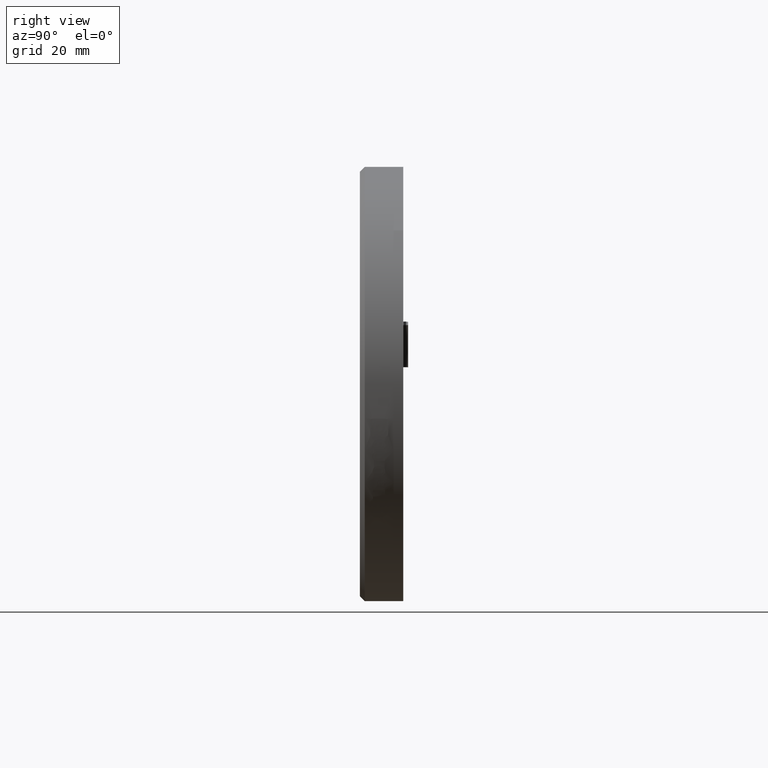
[diagram: clean part render]
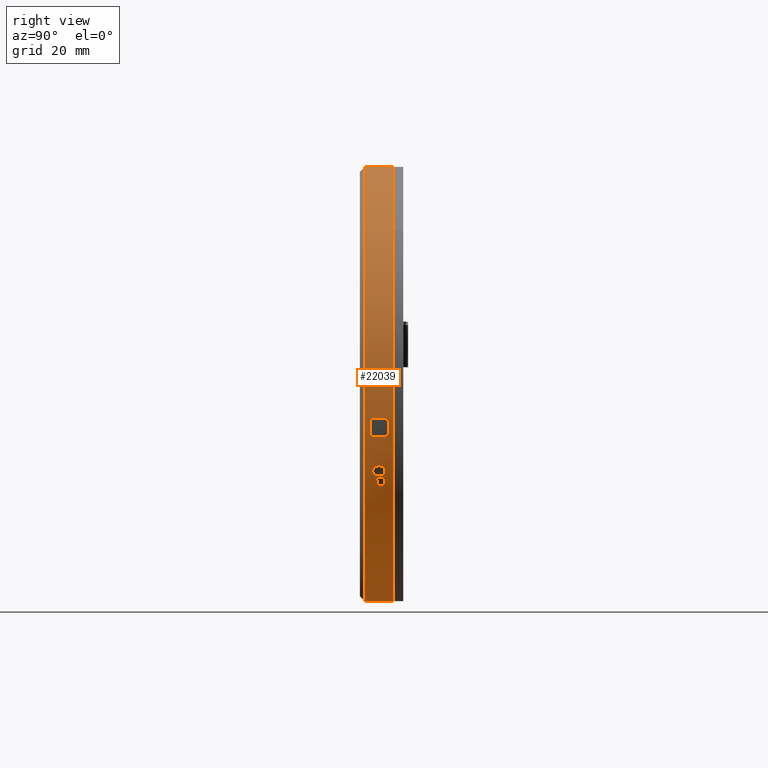
[diagram: same view with one face highlighted and labeled with its STEP entity id]
A machine part, right view. The second image highlights one B-rep face of the part: STEP entity #22039.
In plain terms, the highlighted cylindrical surface (partial cylindrical patch) has radius 45 mm, axis along (-0, -1, -0).
Its self-contained STEP definition (entity closure, byte-faithful):
#79 = CARTESIAN_POINT ( 'NONE',  ( 46.92516399782061900, 3.092309910689239800, -12.06051871026164900 ) ) ;
#87 = CARTESIAN_POINT ( 'NONE',  ( 46.64194302765076800, 3.798563499014688800, -13.03624224024069300 ) ) ;
#96 = CARTESIAN_POINT ( 'NONE',  ( 46.77260303704212400, 3.516587351341240000, -12.59597256235578300 ) ) ;
#104 = CARTESIAN_POINT ( 'NONE',  ( 39.98712803909303700, 3.778057217688310500, -26.43681399167819600 ) ) ;
#125 = VERTEX_POINT ( 'NONE', #9071 ) ;
#130 = CARTESIAN_POINT ( 'NONE',  ( 46.89298031113020200, 1.851524632073385800, -12.17564126673499600 ) ) ;
#203 = CARTESIAN_POINT ( 'NONE',  ( 39.83669149089947600, 2.944063625692813900, -26.64268389426718600 ) ) ;
#244 = DIRECTION ( 'NONE',  ( 0.0000000000000000000, 1.000000000000000000, 0.0000000000000000000 ) ) ;
#331 = CARTESIAN_POINT ( 'NONE',  ( 39.75605406297007200, 2.867867965835444500, -26.75210852026591000 ) ) ;
#354 = EDGE_CURVE ( 'NONE', #7014, #5026, #32169, .T. ) ;
#431 = CARTESIAN_POINT ( 'NONE',  ( 39.89193119577611700, 3.127199387936014000, -26.56729390742143300 ) ) ;
#459 = EDGE_CURVE ( 'NONE', #27757, #25336, #33995, .T. ) ;
#521 = CARTESIAN_POINT ( 'NONE',  ( 39.63637420133925100, 3.502999981011053700, -26.91324703239668600 ) ) ;
#543 = CARTESIAN_POINT ( 'NONE',  ( 45.84093336861111800, 2.260773397852901700, -15.43661116310705600 ) ) ;
#544 = CARTESIAN_POINT ( 'NONE',  ( 46.92382268503894200, 3.741561655146520900, -12.06547767331940000 ) ) ;
#565 = CARTESIAN_POINT ( 'NONE',  ( 39.88740037594973100, 3.074118030932870400, -26.57349705421087500 ) ) ;
#648 = DIRECTION ( 'NONE',  ( -0.0000000000000000000, -1.000000000000000000, -0.0000000000000000000 ) ) ;
#686 = CARTESIAN_POINT ( 'NONE',  ( 46.02045810070219300, 1.621238514131919700, -14.93585926630455600 ) ) ;
#736 = CARTESIAN_POINT ( 'NONE',  ( 39.63647796533516000, 2.818912932736606700, -26.91304910661512700 ) ) ;
#740 = VERTEX_POINT ( 'NONE', #26606 ) ;
#745 = CARTESIAN_POINT ( 'NONE',  ( 39.71826223620345100, 2.396388298347605700, -26.80334897030077800 ) ) ;
#749 = CARTESIAN_POINT ( 'NONE',  ( 44.58222375268859800, 1.413425746857763800, -18.52350883221816200 ) ) ;
#818 = CARTESIAN_POINT ( 'NONE',  ( 46.21224361218705900, 1.379559159160983900, -14.37932300570919600 ) ) ;
#917 = CARTESIAN_POINT ( 'NONE',  ( 44.80396583731187100, 3.865424560643528500, -18.02436879942107600 ) ) ;
#926 = AXIS2_PLACEMENT_3D ( 'NONE', #14019, #36065, #17156 ) ;
#955 = LINE ( 'NONE', #30244, #16687 ) ;
#970 = CARTESIAN_POINT ( 'NONE',  ( 3.571428571428565800, 3.830540839713334000, 0.0000000000000000000 ) ) ;
#994 = EDGE_CURVE ( 'NONE', #3509, #33054, #18155, .T. ) ;
#1038 = CARTESIAN_POINT ( 'NONE',  ( 46.35857007875966200, 2.388680374597038600, -13.93773732108709100 ) ) ;
#1084 = CARTESIAN_POINT ( 'NONE',  ( 47.87981763422960300, 0.7650821860656270600, -7.859176716390393800 ) ) ;
#1117 = CARTESIAN_POINT ( 'NONE',  ( 39.05490952686164300, 2.259357699420959400, -27.67537688619610500 ) ) ;
#1167 = DIRECTION ( 'NONE',  ( 1.000000000000000000, 9.155485012099815400E-017, 0.0000000000000000000 ) ) ;
#1180 = VERTEX_POINT ( 'NONE', #22406 ) ;
#1276 = CARTESIAN_POINT ( 'NONE',  ( 40.58110607780631800, 1.442962530321815000, -25.59909504033392800 ) ) ;
#1287 = EDGE_CURVE ( 'NONE', #4018, #30603, #20045, .T. ) ;
#1388 = ORIENTED_EDGE ( 'NONE', *, *, #6964, .F. ) ;
#1411 = CARTESIAN_POINT ( 'NONE',  ( 42.60041424692222700, 1.330540839713331800, -22.39951510953104500 ) ) ;
#1420 = CARTESIAN_POINT ( 'NONE',  ( 39.66715503843548200, 2.826885950868558900, -26.87194004638785200 ) ) ;
#1479 = CARTESIAN_POINT ( 'NONE',  ( 40.99343265655830500, 3.865424560643528000, -24.99187088339993700 ) ) ;
#1504 = CARTESIAN_POINT ( 'NONE',  ( 45.65696234822569000, 2.259392040147846400, -15.93134944847314900 ) ) ;
#1560 = EDGE_CURVE ( 'NONE', #21463, #27863, #26104, .T. ) ;
#1582 = CARTESIAN_POINT ( 'NONE',  ( 43.40842408767694800, 2.464000115670064200, -20.92894459277135500 ) ) ;
#1714 = CARTESIAN_POINT ( 'NONE',  ( 42.85923026367022000, 1.330540839713336500, -21.94239362948109600 ) ) ;
#1805 = CARTESIAN_POINT ( 'NONE',  ( 46.97863832493619900, 1.529810743445497500, -11.86702050615637400 ) ) ;
#1888 = CARTESIAN_POINT ( 'NONE',  ( 41.61374330166413700, 2.574726886224944200, -24.03710236209227700 ) ) ;
#1893 = VERTEX_POINT ( 'NONE', #27226 ) ;
#1899 = CARTESIAN_POINT ( 'NONE',  ( 40.24256658882264000, 2.191005955992411100, -26.08117398640703000 ) ) ;
#1959 = CARTESIAN_POINT ( 'NONE',  ( 46.35857007875966200, 3.830540839713340700, -13.93773732108709100 ) ) ;
#1977 = CARTESIAN_POINT ( 'NONE',  ( 41.77768855650739300, -1.376447876447879400, -23.77565347056867000 ) ) ;
#1987 = EDGE_CURVE ( 'NONE', #27420, #30298, #6603, .T. ) ;
#2043 = CARTESIAN_POINT ( 'NONE',  ( 41.28335879310569100, 3.080446956220940000, -24.55224135574269800 ) ) ;
#2079 = CARTESIAN_POINT ( 'NONE',  ( 45.25517909689692400, 2.563098979248214600, -16.95479112612466800 ) ) ;
#2117 = VECTOR ( 'NONE', #5336, 1000.000000000000000 ) ;
#2139 = B_SPLINE_CURVE_WITH_KNOTS ( 'NONE', 3,
 ( #36470, #14560, #39732, #20914, #2043, #24104, #5210, #27242, #8375, #30410 ),
 .UNSPECIFIED., .F., .F.,
 ( 4, 2, 2, 2, 4 ),
 ( 0.0000000000000000000, 0.0003194340157472152200, 0.0006388680314944304500, 0.0009583020472416456700, 0.001277736062988860900 ),
 .UNSPECIFIED. ) ;
#2201 = CARTESIAN_POINT ( 'NONE',  ( 44.93255759550357500, 1.323509105032949300, -17.72792799990899900 ) ) ;
#2251 = CARTESIAN_POINT ( 'NONE',  ( 41.77768855650739300, 3.830540839713338500, -23.77565347056867000 ) ) ;
#2274 = EDGE_CURVE ( 'NONE', #19117, #23914, #22800, .T. ) ;
#2373 = VERTEX_POINT ( 'NONE', #31122 ) ;
#2393 = CARTESIAN_POINT ( 'NONE',  ( 44.86972479264234400, 3.858513611382117700, -17.87393864531127700 ) ) ;
#2395 = ORIENTED_EDGE ( 'NONE', *, *, #2465, .F. ) ;
#2427 = CARTESIAN_POINT ( 'NONE',  ( 44.32493656374769100, 2.563098979248214600, -19.08275625584472800 ) ) ;
#2465 = EDGE_CURVE ( 'NONE', #11125, #35273, #12394, .T. ) ;
#2469 = AXIS2_PLACEMENT_3D ( 'NONE', #26233, #23354, #23070 ) ;
#2539 = CARTESIAN_POINT ( 'NONE',  ( 46.14248342490125100, 1.741228740654259300, -14.58449308103890900 ) ) ;
#2575 = ORIENTED_EDGE ( 'NONE', *, *, #37105, .F. ) ;
#2614 = CARTESIAN_POINT ( 'NONE',  ( 47.87981763422960300, 4.493507519689179800, -7.859176716390393800 ) ) ;
#2684 = CARTESIAN_POINT ( 'NONE',  ( 46.64942958916299900, 1.746546864445782400, -13.01108043908310900 ) ) ;
#2719 = CARTESIAN_POINT ( 'NONE',  ( 39.68337895165026200, 1.609610607155188600, -26.85008453871992600 ) ) ;
#3025 = EDGE_CURVE ( 'NONE', #37969, #9464, #16674, .T. ) ;
#3027 = CARTESIAN_POINT ( 'NONE',  ( 40.09995672507431400, 1.891713729973976100, -26.28103003675453700 ) ) ;
#3094 = CARTESIAN_POINT ( 'NONE',  ( 47.23716371202097300, 3.997134208116713200, -10.87677694539807000 ) ) ;
#3102 = EDGE_CURVE ( 'NONE', #38457, #40427, #25579, .T. ) ;
#3129 = VERTEX_POINT ( 'NONE', #10384 ) ;
#3222 = CARTESIAN_POINT ( 'NONE',  ( 46.87924333953424800, 3.361114347155189600, -12.22460652416707900 ) ) ;
#3236 = CARTESIAN_POINT ( 'NONE',  ( 46.73993510514034000, 3.865424560643528500, -12.70801575858640600 ) ) ;
#3252 = CARTESIAN_POINT ( 'NONE',  ( 40.13778189410303600, 3.584294012486421100, -26.22792695977609500 ) ) ;
#3279 = CARTESIAN_POINT ( 'NONE',  ( 46.93209104726377500, 2.143747024996852900, -12.03550912229766800 ) ) ;
#3309 = CARTESIAN_POINT ( 'NONE',  ( 40.91319647081788700, 1.621238514131919000, -25.11159831926549300 ) ) ;
#3343 = ORIENTED_EDGE ( 'NONE', *, *, #37676, .F. ) ;
#3380 = CARTESIAN_POINT ( 'NONE',  ( 40.42895887791236500, 2.179378049015680200, -25.81709626791185700 ) ) ;
#3412 = ORIENTED_EDGE ( 'NONE', *, *, #18071, .F. ) ;
#3476 = DIRECTION ( 'NONE',  ( -8.999925871200201800E-017, 1.000000000000000000, 3.620616613694325400E-017 ) ) ;
#3498 = CARTESIAN_POINT ( 'NONE',  ( 39.69732923060189500, 2.837496053895076200, -26.83135728595815900 ) ) ;
#3509 = VERTEX_POINT ( 'NONE', #1714 ) ;
#3555 = EDGE_CURVE ( 'NONE', #22967, #30928, #27201, .T. ) ;
#3586 = DIRECTION ( 'NONE',  ( 8.999925871200201800E-017, -1.000000000000000000, -3.620616613694329100E-017 ) ) ;
#3593 = EDGE_LOOP ( 'NONE', ( #21953, #36307, #38812, #34843 ) ) ;
#3650 = LINE ( 'NONE', #19493, #27805 ) ;
#3671 = DIRECTION ( 'NONE',  ( 8.999925871200201800E-017, -1.000000000000000000, -3.620616613694328500E-017 ) ) ;
#3673 = VECTOR ( 'NONE', #15056, 1000.000000000000000 ) ;
#3684 = AXIS2_PLACEMENT_3D ( 'NONE', #34254, #15347, #37384 ) ;
#3710 = CARTESIAN_POINT ( 'NONE',  ( 46.97856480315846300, 3.612534689835877000, -11.86697122789694200 ) ) ;
#3774 = VECTOR ( 'NONE', #9369, 1000.000000000000000 ) ;
#3807 = CARTESIAN_POINT ( 'NONE',  ( 40.90554784006982900, 3.495831433549942100, -25.12303594151245500 ) ) ;
#3888 = CARTESIAN_POINT ( 'NONE',  ( 46.64578011346790700, 1.324599090548993700, -13.02346656336957600 ) ) ;
#3917 = CARTESIAN_POINT ( 'NONE',  ( 44.49808298975488400, 1.543617814056706500, -18.70864282126121800 ) ) ;
#3919 = ORIENTED_EDGE ( 'NONE', *, *, #18644, .F. ) ;
#3924 = B_SPLINE_CURVE_WITH_KNOTS ( 'NONE', 3,
 ( #39051, #4509, #26572, #7683, #29723, #10858, #32897, #14023, #36066, #17157, #39201, #20359, #1504, #23550 ),
 .UNSPECIFIED., .F., .F.,
 ( 4, 2, 2, 2, 2, 2, 4 ),
 ( 0.0000000000000000000, 0.0004495167725775378200, 0.0006742751588663068300, 0.0008990335451550758500, 0.001123791931443845100, 0.001348550317732613900, 0.001798067090310150400 ),
 .UNSPECIFIED. ) ;
#3957 = VERTEX_POINT ( 'NONE', #30256 ) ;
#3971 = CARTESIAN_POINT ( 'NONE',  ( 46.12137405855001800, 1.289554890148509000, -14.64658279238749600 ) ) ;
#4012 = EDGE_CURVE ( 'NONE', #25336, #18533, #34366, .T. ) ;
#4018 = VERTEX_POINT ( 'NONE', #33511 ) ;
#4121 = DIRECTION ( 'NONE',  ( -1.000000000000000000, -8.673617379884035500E-017, 0.0000000000000000000 ) ) ;
#4170 = CARTESIAN_POINT ( 'NONE',  ( 44.93317847511649900, 3.832186308739187600, -17.72650889606948300 ) ) ;
#4269 = CARTESIAN_POINT ( 'NONE',  ( 39.18656006403981700, 2.529105553522283500, -27.50585541997520200 ) ) ;
#4310 = CARTESIAN_POINT ( 'NONE',  ( 47.39600334793163900, 0.7650821860656267200, -10.21795701981031500 ) ) ;
#4401 = AXIS2_PLACEMENT_3D ( 'NONE', #38872, #20026, #1167 ) ;
#4434 = CARTESIAN_POINT ( 'NONE',  ( 40.42895887791236500, 1.702633862969135300, -25.81709626791185000 ) ) ;
#4447 = CARTESIAN_POINT ( 'NONE',  ( 44.80396583731187100, 3.865424560643528500, -18.02436879942107600 ) ) ;
#4486 = CARTESIAN_POINT ( 'NONE',  ( 40.24256658882264000, 1.749145490876111300, -26.08117398640703000 ) ) ;
#4509 = CARTESIAN_POINT ( 'NONE',  ( 45.97368308099142100, 1.276145100658580000, -15.06890415635839800 ) ) ;
#4526 = CARTESIAN_POINT ( 'NONE',  ( 45.02298645718224200, 3.739705193843981600, -17.51497122545241300 ) ) ;
#4596 = VERTEX_POINT ( 'NONE', #4902 ) ;
#4597 = CARTESIAN_POINT ( 'NONE',  ( 43.34881423592625500, 3.129689165410176200, -21.04185333832580100 ) ) ;
#4615 = VERTEX_POINT ( 'NONE', #2427 ) ;
#4732 = CARTESIAN_POINT ( 'NONE',  ( 43.35208390604494600, 2.788270315278059000, -21.03569469884880400 ) ) ;
#4733 = ORIENTED_EDGE ( 'NONE', *, *, #25107, .F. ) ;
#4738 = CARTESIAN_POINT ( 'NONE',  ( 43.38423287929383300, 3.456829687080858800, -20.97478705046654600 ) ) ;
#4821 = CARTESIAN_POINT ( 'NONE',  ( 47.08348121365426700, 2.419678028853742300, -11.47611904132404500 ) ) ;
#4849 = VERTEX_POINT ( 'NONE', #33031 ) ;
#4902 = CARTESIAN_POINT ( 'NONE',  ( 46.19411829049013100, 3.830540839713338500, -14.43282096863267800 ) ) ;
#4918 = EDGE_CURVE ( 'NONE', #1180, #35062, #31944, .T. ) ;
#4919 = CARTESIAN_POINT ( 'NONE',  ( 40.99343265655830500, 3.865424560643528000, -24.99187088339993700 ) ) ;
#4964 = CARTESIAN_POINT ( 'NONE',  ( 46.85651277189410300, 1.317076155963407700, -12.30551621551215300 ) ) ;
#4967 = VECTOR ( 'NONE', #34419, 1000.000000000000000 ) ;
#5003 = CARTESIAN_POINT ( 'NONE',  ( 45.05086448798825000, 3.700881145358766200, -17.44880496169185900 ) ) ;
#5026 = VERTEX_POINT ( 'NONE', #39513 ) ;
#5035 = DIRECTION ( 'NONE',  ( 0.0000000000000000000, 1.000000000000000000, 0.0000000000000000000 ) ) ;
#5047 = CARTESIAN_POINT ( 'NONE',  ( 45.10211669892918000, 3.604996199715094600, -17.32646363812948900 ) ) ;
#5054 = DIRECTION ( 'NONE',  ( 0.0000000000000000000, 3.373073425510458600E-017, 1.000000000000000000 ) ) ;
#5086 = CARTESIAN_POINT ( 'NONE',  ( 45.12536344318708400, 3.547625568367561000, -17.27058635211021100 ) ) ;
#5193 = DIRECTION ( 'NONE',  ( -0.0000000000000000000, -1.000000000000000000, -0.0000000000000000000 ) ) ;
#5210 = CARTESIAN_POINT ( 'NONE',  ( 41.19330408283780500, 3.360202316105647600, -24.69013105995019300 ) ) ;
#5225 = CARTESIAN_POINT ( 'NONE',  ( 45.16481479071612200, 3.421279486320137700, -17.17535673822306600 ) ) ;
#5252 = VERTEX_POINT ( 'NONE', #31018 ) ;
#5268 = CARTESIAN_POINT ( 'NONE',  ( 39.78501289724216200, 2.887808947337408700, -26.71288471852829400 ) ) ;
#5279 = CARTESIAN_POINT ( 'NONE',  ( 45.18158674383494900, 3.350707247279606900, -17.13464394355047200 ) ) ;
#5290 = EDGE_CURVE ( 'NONE', #30039, #22679, #33266, .T. ) ;
#5308 = B_SPLINE_CURVE_WITH_KNOTS ( 'NONE', 3,
 ( #24123, #27259, #14722, #36736, #17864, #39891, #21068, #2201, #24261, #5370 ),
 .UNSPECIFIED., .F., .F.,
 ( 4, 2, 2, 2, 4 ),
 ( 0.0000000000000000000, 0.0004782983567124793200, 0.0009565967134249592900, 0.001434895070137439300, 0.001913193426849919000 ),
 .UNSPECIFIED. ) ;
#5324 = CARTESIAN_POINT ( 'NONE',  ( 39.16291280530663200, 1.494457993797006800, -27.53630118663696500 ) ) ;
#5329 = CARTESIAN_POINT ( 'NONE',  ( 3.571428571428565800, -0.3764478764478641500, 0.0000000000000000000 ) ) ;
#5334 = ORIENTED_EDGE ( 'NONE', *, *, #23909, .F. ) ;
#5336 = DIRECTION ( 'NONE',  ( -0.0000000000000000000, -1.000000000000000000, -0.0000000000000000000 ) ) ;
#5370 = CARTESIAN_POINT ( 'NONE',  ( 44.80396583731187100, 1.284029211806361000, -18.02436879942107600 ) ) ;
#5400 = CARTESIAN_POINT ( 'NONE',  ( 39.88953649017156500, 3.179378049015681100, -26.57056712233551800 ) ) ;
#5418 = VERTEX_POINT ( 'NONE', #25211 ) ;
#5545 = CARTESIAN_POINT ( 'NONE',  ( 45.20884549997268900, 3.203641165967464800, -17.06829803242009500 ) ) ;
#5602 = CARTESIAN_POINT ( 'NONE',  ( 45.21946362382568200, 3.127226523894629300, -17.04234929295762100 ) ) ;
#5630 = ORIENTED_EDGE ( 'NONE', *, *, #10415, .F. ) ;
#5642 = CARTESIAN_POINT ( 'NONE',  ( 45.24466376941555300, 2.891542854027848300, -16.98067845313428500 ) ) ;
#5697 = CARTESIAN_POINT ( 'NONE',  ( 45.25251142110391100, 2.727297644509141300, -16.96134966945398400 ) ) ;
#5706 = VERTEX_POINT ( 'NONE', #13135 ) ;
#5707 = CARTESIAN_POINT ( 'NONE',  ( 46.18148035649187500, 1.946680554446713400, -14.47009912180429600 ) ) ;
#5733 = CARTESIAN_POINT ( 'NONE',  ( 46.46178397307032500, -1.376447876447878900, -13.61680628931979900 ) ) ;
#5770 = CARTESIAN_POINT ( 'NONE',  ( 39.37270514941715000, 1.993331537387777600, -27.26295280020794100 ) ) ;
#5784 = CARTESIAN_POINT ( 'NONE',  ( 47.95866419140629200, 4.326011916844630700, -7.401151650068253000 ) ) ;
#5849 = CARTESIAN_POINT ( 'NONE',  ( 43.96296205956051800, -1.376447876447879100, -19.83743991741663100 ) ) ;
#5860 = ORIENTED_EDGE ( 'NONE', *, *, #26283, .F. ) ;
#5867 = CARTESIAN_POINT ( 'NONE',  ( 46.69351788498069300, 1.652209094182040600, -12.86424557047140600 ) ) ;
#5882 = VECTOR ( 'NONE', #18433, 1000.000000000000000 ) ;
#5886 = CARTESIAN_POINT ( 'NONE',  ( 45.25517909689692400, 2.563098979248214600, -16.95479112612466800 ) ) ;
#5973 = LINE ( 'NONE', #6715, #14322 ) ;
#6034 = B_SPLINE_CURVE_WITH_KNOTS ( 'NONE', 3,
 ( #15533, #37441, #21910, #3027, #25086, #6203 ),
 .UNSPECIFIED., .F., .F.,
 ( 4, 2, 4 ),
 ( 0.0000000000000000000, 0.0005789284124143870800, 0.001157856824828774200 ),
 .UNSPECIFIED. ) ;
#6045 = FACE_BOUND ( 'NONE', #3593, .T. ) ;
#6176 = CARTESIAN_POINT ( 'NONE',  ( 39.61757333317017800, 2.367482888948135900, -26.93841801829744000 ) ) ;
#6203 = CARTESIAN_POINT ( 'NONE',  ( 40.24256658882264000, 2.191005955992411100, -26.08117398640703000 ) ) ;
#6216 = CARTESIAN_POINT ( 'NONE',  ( 39.86958429345200700, 3.364781274106375200, -26.59782197668010500 ) ) ;
#6228 = EDGE_CURVE ( 'NONE', #3957, #9440, #21405, .T. ) ;
#6258 = VERTEX_POINT ( 'NONE', #37368 ) ;
#6275 = CARTESIAN_POINT ( 'NONE',  ( 47.26103989171348000, 4.257897488682904600, -10.78063929436560500 ) ) ;
#6291 = B_SPLINE_CURVE_WITH_KNOTS ( 'NONE', 3,
 ( #28626, #31964, #19406, #544, #22593, #3710, #25757, #6897, #28917, #10046, #32100, #13200, #35254, #16346 ),
 .UNSPECIFIED., .F., .F.,
 ( 4, 2, 2, 2, 2, 2, 4 ),
 ( 0.0000000000000000000, 0.0004845515317035129800, 0.0007268272975552692500, 0.0009691030634070255300, 0.001211378829258781600, 0.001453654595110538100, 0.001938206126814047600 ),
 .UNSPECIFIED. ) ;
#6377 = CIRCLE ( 'NONE', #22983, 45.00000000000000000 ) ;
#6415 = CARTESIAN_POINT ( 'NONE',  ( 46.80221303200053000, 3.506485688994874100, -12.49441735875467800 ) ) ;
#6442 = CARTESIAN_POINT ( 'NONE',  ( 40.20707477730184800, 3.286905097175754500, -26.13100563695001800 ) ) ;
#6475 = CARTESIAN_POINT ( 'NONE',  ( 46.94727266985918800, 2.465659925172388100, -11.98065793972167000 ) ) ;
#6555 = CARTESIAN_POINT ( 'NONE',  ( 40.45702718511663700, 2.104259146946866100, -25.77702481786580800 ) ) ;
#6570 = DIRECTION ( 'NONE',  ( -8.999925871200196900E-017, 1.000000000000000000, 3.620616613694337100E-017 ) ) ;
#6603 = CIRCLE ( 'NONE', #17755, 44.99999999999999300 ) ;
#6622 = EDGE_CURVE ( 'NONE', #24814, #18853, #24871, .T. ) ;
#6715 = CARTESIAN_POINT ( 'NONE',  ( 47.23490287680378700, -1.376447876447878000, -10.88581699202396500 ) ) ;
#6828 = CARTESIAN_POINT ( 'NONE',  ( 40.21858451238347200, 3.063142547419404100, -26.11486494731685300 ) ) ;
#6841 = VERTEX_POINT ( 'NONE', #1959 ) ;
#6872 = CARTESIAN_POINT ( 'NONE',  ( 39.66998611661703200, 3.504959444364453600, -26.86808782099532100 ) ) ;
#6897 = CARTESIAN_POINT ( 'NONE',  ( 47.02236962591673800, 3.434885077499386000, -11.70549057658652000 ) ) ;
#6938 = CARTESIAN_POINT ( 'NONE',  ( 3.571428571428565800, 3.132866421108646100, 0.0000000000000000000 ) ) ;
#6945 = CIRCLE ( 'NONE', #40171, 45.00000000000000000 ) ;
#6955 = ORIENTED_EDGE ( 'NONE', *, *, #31795, .F. ) ;
#6964 = EDGE_CURVE ( 'NONE', #33684, #27757, #7477, .T. ) ;
#6982 = CARTESIAN_POINT ( 'NONE',  ( 40.81072437808908400, 3.415616936789726200, -25.26334683707906900 ) ) ;
#7014 = VERTEX_POINT ( 'NONE', #40339 ) ;
#7015 = ORIENTED_EDGE ( 'NONE', *, *, #32349, .F. ) ;
#7017 = VECTOR ( 'NONE', #25046, 1000.000000000000000 ) ;
#7053 = DIRECTION ( 'NONE',  ( -8.999925871200198100E-017, 1.000000000000000000, 3.620616613694336500E-017 ) ) ;
#7091 = CARTESIAN_POINT ( 'NONE',  ( 39.08968711655868600, 3.200672902669733100, -27.63066647253305400 ) ) ;
#7097 = CARTESIAN_POINT ( 'NONE',  ( 44.40707188476752500, 1.782185713768981800, -18.90664359540440000 ) ) ;
#7117 = CARTESIAN_POINT ( 'NONE',  ( 46.77260303704212400, 3.516587351341240000, -12.59597256235578300 ) ) ;
#7163 = CARTESIAN_POINT ( 'NONE',  ( 46.02405052905489700, 1.284029211806361200, -14.92564534359780600 ) ) ;
#7230 = ORIENTED_EDGE ( 'NONE', *, *, #459, .F. ) ;
#7321 = AXIS2_PLACEMENT_3D ( 'NONE', #12466, #28179, #12603 ) ;
#7355 = ORIENTED_EDGE ( 'NONE', *, *, #21880, .F. ) ;
#7450 = CARTESIAN_POINT ( 'NONE',  ( 39.37032416660867500, 2.694986910218835500, -27.26629567014430600 ) ) ;
#7477 = LINE ( 'NONE', #36902, #13875 ) ;
#7488 = CARTESIAN_POINT ( 'NONE',  ( 47.29286838647725900, 0.8696480514546912600, -10.65082552381538200 ) ) ;
#7584 = DIRECTION ( 'NONE',  ( -1.070810070978158400E-016, 1.000000000000000000, -6.254686702693280600E-018 ) ) ;
#7612 = CARTESIAN_POINT ( 'NONE',  ( 47.99603101192574400, 1.444843921003401000, -7.173193013140814100 ) ) ;
#7619 = DIRECTION ( 'NONE',  ( -0.0000000000000000000, -1.000000000000000000, -0.0000000000000000000 ) ) ;
#7661 = CARTESIAN_POINT ( 'NONE',  ( 40.43461901418383800, 3.275449600957683200, -25.80908254034033400 ) ) ;
#7683 = CARTESIAN_POINT ( 'NONE',  ( 45.84835006677846500, 1.341373180998666900, -15.41646062880285400 ) ) ;
#7781 = VERTEX_POINT ( 'NONE', #19011 ) ;
#7908 = CARTESIAN_POINT ( 'NONE',  ( 43.34950992236915100, 3.016587351341239100, -21.04053811189136200 ) ) ;
#7915 = CARTESIAN_POINT ( 'NONE',  ( 43.48863886092252100, 3.711629142804798900, -20.77554354954014600 ) ) ;
#8057 = EDGE_CURVE ( 'NONE', #36923, #3509, #11211, .T. ) ;
#8084 = CARTESIAN_POINT ( 'NONE',  ( 41.16926884098882100, 3.825964856305948300, -24.72700409917222000 ) ) ;
#8128 = CARTESIAN_POINT ( 'NONE',  ( 46.76342631481922800, 1.284029211806361400, -12.62740396656952100 ) ) ;
#8183 = EDGE_CURVE ( 'NONE', #34403, #34823, #30648, .T. ) ;
#8190 = B_SPLINE_CURVE_WITH_KNOTS ( 'NONE', 3,
 ( #20533, #4821, #17459, #39507, #20679, #1805, #23852, #4964, #26993, #8128 ),
 .UNSPECIFIED., .F., .F.,
 ( 4, 2, 2, 2, 4 ),
 ( 0.0000000000000000000, 0.0004933102088341256200, 0.0009866204176682512300, 0.001479930626502376800, 0.001973240835336502500 ),
 .UNSPECIFIED. ) ;
#8228 = CARTESIAN_POINT ( 'NONE',  ( 43.73979869081421200, 3.830540839713338500, -20.28551310546631800 ) ) ;
#8375 = CARTESIAN_POINT ( 'NONE',  ( 41.03491550964149300, 3.500891724132654000, -24.92987707611969100 ) ) ;
#8402 = AXIS2_PLACEMENT_3D ( 'NONE', #25925, #7053, #29066 ) ;
#8587 = VERTEX_POINT ( 'NONE', #36700 ) ;
#8605 = CARTESIAN_POINT ( 'NONE',  ( 41.55131356757094400, 1.943634889268799600, -24.13566444984932600 ) ) ;
#8755 = B_SPLINE_CURVE_WITH_KNOTS ( 'NONE', 3,
 ( #26059, #16776, #1117, #23180, #4269, #26334, #7450, #29485, #10604, #32653 ),
 .UNSPECIFIED., .F., .F.,
 ( 4, 2, 2, 2, 4 ),
 ( 0.0000000000000000000, 0.0003442922951198808500, 0.0006885845902397616900, 0.001032876885359642700, 0.001377169180479523400 ),
 .UNSPECIFIED. ) ;
#8870 = CARTESIAN_POINT ( 'NONE',  ( 46.19411829049014500, 2.181165649321408200, -14.43282096863267400 ) ) ;
#8880 = CARTESIAN_POINT ( 'NONE',  ( 42.60041424692222700, -1.376447876447879100, -22.39951510953104500 ) ) ;
#8947 = CARTESIAN_POINT ( 'NONE',  ( 47.98545163239821700, 4.073515106029499400, -7.238459177496633100 ) ) ;
#9027 = CARTESIAN_POINT ( 'NONE',  ( 46.74350902650696300, 1.619539865416799000, -12.69547462281787500 ) ) ;
#9060 = ORIENTED_EDGE ( 'NONE', *, *, #34758, .F. ) ;
#9071 = CARTESIAN_POINT ( 'NONE',  ( 40.42895887791236500, 2.179378049015680200, -25.81709626791185700 ) ) ;
#9116 = CARTESIAN_POINT ( 'NONE',  ( 3.571428571428565800, 1.330540839713333400, 0.0000000000000000000 ) ) ;
#9176 = EDGE_CURVE ( 'NONE', #35684, #20880, #18411, .T. ) ;
#9181 = B_SPLINE_CURVE_WITH_KNOTS ( 'NONE', 3,
 ( #17241, #4597, #23642, #4738, #26778, #7915, #29950, #11075, #33122, #14238 ),
 .UNSPECIFIED., .F., .F.,
 ( 4, 2, 2, 2, 4 ),
 ( 0.0000000000000000000, 0.0003348098627868715000, 0.0006696197255737430000, 0.001004429588360614400, 0.001339239451147486000 ),
 .UNSPECIFIED. ) ;
#9190 = EDGE_CURVE ( 'NONE', #30282, #12514, #18245, .T. ) ;
#9309 = EDGE_LOOP ( 'NONE', ( #19276, #36604, #36758, #5630, #33748, #11208, #7355, #23704, #23724, #27353, #39959, #23196, #18230, #6955 ) ) ;
#9319 = CARTESIAN_POINT ( 'NONE',  ( 46.47601543153093200, 3.243483514832957000, -13.57194654566648900 ) ) ;
#9331 = CARTESIAN_POINT ( 'NONE',  ( 39.67666301462088500, 3.865424560643527600, -26.85911476207134600 ) ) ;
#9369 = DIRECTION ( 'NONE',  ( -0.0000000000000000000, -1.000000000000000000, -0.0000000000000000000 ) ) ;
#9371 = CARTESIAN_POINT ( 'NONE',  ( 39.80807066010641600, 3.463307749194267900, -26.68158938852326400 ) ) ;
#9386 = ORIENTED_EDGE ( 'NONE', *, *, #33589, .F. ) ;
#9402 = VERTEX_POINT ( 'NONE', #17774 ) ;
#9435 = CARTESIAN_POINT ( 'NONE',  ( 47.31224918670866200, 4.431973069754611100, -10.57111269131776500 ) ) ;
#9440 = VERTEX_POINT ( 'NONE', #33926 ) ;
#9464 = VERTEX_POINT ( 'NONE', #2251 ) ;
#9571 = ORIENTED_EDGE ( 'NONE', *, *, #30033, .F. ) ;
#9715 = EDGE_CURVE ( 'NONE', #39909, #9402, #20320, .T. ) ;
#9734 = ORIENTED_EDGE ( 'NONE', *, *, #10356, .T. ) ;
#9739 = CARTESIAN_POINT ( 'NONE',  ( 40.55406449518493200, 1.898425541417362700, -25.63762985118766100 ) ) ;
#9986 = B_SPLINE_CURVE_WITH_KNOTS ( 'NONE', 3,
 ( #12646, #15809, #37839, #18989, #130, #22180, #3279, #25334, #6475, #28480 ),
 .UNSPECIFIED., .F., .F.,
 ( 4, 2, 2, 2, 4 ),
 ( 0.0000000000000000000, 0.0003253503157312202100, 0.0006507006314624404300, 0.0009760509471936606400, 0.001301401262924880900 ),
 .UNSPECIFIED. ) ;
#9996 = EDGE_LOOP ( 'NONE', ( #22670, #9571, #11299, #11423, #24626, #5334, #19031, #12074, #32649, #18422 ) ) ;
#10016 = CARTESIAN_POINT ( 'NONE',  ( 39.51307588317320100, 3.417282084722755600, -27.07765744340872200 ) ) ;
#10045 = CARTESIAN_POINT ( 'NONE',  ( 45.84110113206818200, 2.099526473205989100, -15.43615848866452600 ) ) ;
#10046 = CARTESIAN_POINT ( 'NONE',  ( 47.05332124473859800, 3.221404462846664300, -11.58992609587314400 ) ) ;
#10101 = CARTESIAN_POINT ( 'NONE',  ( 40.21011187119830100, 2.943518074307490000, -26.12680202974197400 ) ) ;
#10133 = CARTESIAN_POINT ( 'NONE',  ( 40.74337904861806000, 3.272295786830393000, -25.36231012498242200 ) ) ;
#10233 = ORIENTED_EDGE ( 'NONE', *, *, #10656, .F. ) ;
#10244 = CARTESIAN_POINT ( 'NONE',  ( 39.17795811291820500, 3.514058656689656800, -27.51686922527003500 ) ) ;
#10249 = CARTESIAN_POINT ( 'NONE',  ( 44.33733128913074500, 2.238958217542789800, -19.05631920237655300 ) ) ;
#10255 = B_SPLINE_CURVE_WITH_KNOTS ( 'NONE', 3,
 ( #14100, #32967, #17233, #39271, #20429, #1582, #23628, #4732, #26767, #7908 ),
 .UNSPECIFIED., .F., .F.,
 ( 4, 2, 2, 2, 4 ),
 ( 3.496446946337351300E-018, 0.0003397954327033233100, 0.0006795908654066431500, 0.001019386298109963100, 0.001359181730813282800 ),
 .UNSPECIFIED. ) ;
#10266 = EDGE_CURVE ( 'NONE', #14354, #12896, #17663, .T. ) ;
#10270 = CARTESIAN_POINT ( 'NONE',  ( 44.33908571967128900, 2.884621734020143900, -19.05256508150514700 ) ) ;
#10356 = EDGE_CURVE ( 'NONE', #15166, #25082, #39072, .T. ) ;
#10384 = CARTESIAN_POINT ( 'NONE',  ( 39.37270514941715000, 1.993331537387777600, -27.26295280020794100 ) ) ;
#10415 = EDGE_CURVE ( 'NONE', #34625, #23725, #15772, .T. ) ;
#10452 = DIRECTION ( 'NONE',  ( 1.000000000000000000, 9.155485012099815400E-017, 0.0000000000000000000 ) ) ;
#10476 = LINE ( 'NONE', #39588, #2117 ) ;
#10604 = CARTESIAN_POINT ( 'NONE',  ( 39.56895515269324900, 2.796287934497684100, -27.00353359848738000 ) ) ;
#10623 = CARTESIAN_POINT ( 'NONE',  ( 40.87847542748126300, 1.284029211806360800, -25.16383037638111000 ) ) ;
#10643 = CARTESIAN_POINT ( 'NONE',  ( 47.25026435994572400, 1.082363058490564800, -10.82404864712132700 ) ) ;
#10656 = EDGE_CURVE ( 'NONE', #27908, #31905, #15591, .T. ) ;
#10719 = DIRECTION ( 'NONE',  ( -8.999925871200200600E-017, 1.000000000000000000, 3.620616613694335800E-017 ) ) ;
#10754 = LINE ( 'NONE', #14462, #14706 ) ;
#10787 = CARTESIAN_POINT ( 'NONE',  ( 3.571428571428565800, 5.623552123552121500, -45.00000000000000000 ) ) ;
#10791 = CARTESIAN_POINT ( 'NONE',  ( 47.97816112883079900, 0.9986183893488812500, -7.283307580953340300 ) ) ;
#10819 = VERTEX_POINT ( 'NONE', #36921 ) ;
#10841 = CARTESIAN_POINT ( 'NONE',  ( 40.39694982747975900, 3.039843165294755500, -25.86273350247652300 ) ) ;
#10843 = VERTEX_POINT ( 'NONE', #30909 ) ;
#10858 = CARTESIAN_POINT ( 'NONE',  ( 45.77789064753805800, 1.445076951155098000, -15.60829605057542600 ) ) ;
#10877 = VERTEX_POINT ( 'NONE', #40353 ) ;
#10890 = VERTEX_POINT ( 'NONE', #40486 ) ;
#11008 = CARTESIAN_POINT ( 'NONE',  ( 3.571428571428565800, 1.330540839713332000, 0.0000000000000000000 ) ) ;
#11075 = CARTESIAN_POINT ( 'NONE',  ( 43.63702612458428800, 3.820389953031076800, -20.48804111101950900 ) ) ;
#11120 = DIRECTION ( 'NONE',  ( 8.999925871200199400E-017, -1.000000000000000000, -3.620616613694329700E-017 ) ) ;
#11125 = VERTEX_POINT ( 'NONE', #31912 ) ;
#11208 = ORIENTED_EDGE ( 'NONE', *, *, #6228, .F. ) ;
#11211 = LINE ( 'NONE', #17449, #40762 ) ;
#11249 = CARTESIAN_POINT ( 'NONE',  ( 41.33005358397925000, 3.692740934024956200, -24.48040885679726800 ) ) ;
#11253 = CARTESIAN_POINT ( 'NONE',  ( 3.571428571428571200, 5.623552123552121500, 45.00000000000000000 ) ) ;
#11299 = ORIENTED_EDGE ( 'NONE', *, *, #32445, .F. ) ;
#11326 = CARTESIAN_POINT ( 'NONE',  ( 39.63647796533516000, 1.284029211806360100, -26.91304910661512700 ) ) ;
#11357 = B_SPLINE_CURVE_WITH_KNOTS ( 'NONE', 3,
 ( #4310, #20019, #25400, #26373, #7488, #29520, #10643, #32689, #13819, #35860 ),
 .UNSPECIFIED., .F., .F.,
 ( 4, 2, 2, 2, 4 ),
 ( 0.0000000000000000000, 0.0002734797383373103200, 0.0005469594766746206400, 0.0008204392150119309600, 0.001093918953349241300 ),
 .UNSPECIFIED. ) ;
#11423 = ORIENTED_EDGE ( 'NONE', *, *, #23527, .F. ) ;
#11445 = VECTOR ( 'NONE', #40152, 1000.000000000000000 ) ;
#11614 = B_SPLINE_CURVE_WITH_KNOTS ( 'NONE', 3,
 ( #25862, #26000, #10270, #32323, #13439, #35490, #16572, #38621, #19770, #917 ),
 .UNSPECIFIED., .F., .F.,
 ( 4, 2, 2, 2, 4 ),
 ( 0.0000000000000000000, 0.0004810652718423741600, 0.0009621305436847483200, 0.001443195815527122400, 0.001924261087369496600 ),
 .UNSPECIFIED. ) ;
#11684 = CARTESIAN_POINT ( 'NONE',  ( 41.77768855650739300, 1.330540839713336000, -23.77565347056867000 ) ) ;
#11727 = CARTESIAN_POINT ( 'NONE',  ( 39.69565064954832000, 1.278726468482360900, -26.83375427196208900 ) ) ;
#11754 = CARTESIAN_POINT ( 'NONE',  ( 41.40128378514815900, 1.540158298367842100, -24.37032772175476200 ) ) ;
#11831 = ORIENTED_EDGE ( 'NONE', *, *, #22430, .F. ) ;
#12041 = DIRECTION ( 'NONE',  ( 0.0000000000000000000, 1.000000000000000000, 0.0000000000000000000 ) ) ;
#12070 = CARTESIAN_POINT ( 'NONE',  ( 39.38081776866586400, 1.871103292316259400, -27.25230988861420700 ) ) ;
#12074 = ORIENTED_EDGE ( 'NONE', *, *, #6622, .F. ) ;
#12087 = CARTESIAN_POINT ( 'NONE',  ( 47.99603101192572300, 3.778931698826512700, -7.173193013140811500 ) ) ;
#12144 = LINE ( 'NONE', #31423, #3774 ) ;
#12182 = VECTOR ( 'NONE', #27865, 1000.000000000000000 ) ;
#12237 = ORIENTED_EDGE ( 'NONE', *, *, #33357, .F. ) ;
#12268 = DIRECTION ( 'NONE',  ( 0.0000000000000000000, -3.565820478396769900E-016, -1.000000000000000000 ) ) ;
#12271 = CARTESIAN_POINT ( 'NONE',  ( 39.75414514662756500, 1.282387595910617000, -26.75482191143464300 ) ) ;
#12394 = CIRCLE ( 'NONE', #36540, 45.00000000000000000 ) ;
#12397 = CARTESIAN_POINT ( 'NONE',  ( 39.86954844128501200, 1.313155341758643700, -26.59804444291527400 ) ) ;
#12466 = CARTESIAN_POINT ( 'NONE',  ( 3.571428571428565800, -1.376447876447878900, 0.0000000000000000000 ) ) ;
#12478 = CARTESIAN_POINT ( 'NONE',  ( 39.52354808907258400, 2.320701290365602400, -27.06377249404220100 ) ) ;
#12514 = VERTEX_POINT ( 'NONE', #32665 ) ;
#12522 = CARTESIAN_POINT ( 'NONE',  ( 39.72634978210154300, 3.501415900516569500, -26.79223390326385600 ) ) ;
#12533 = CARTESIAN_POINT ( 'NONE',  ( 39.92610989883436200, 1.340674930002147200, -26.52065423754710900 ) ) ;
#12585 = CARTESIAN_POINT ( 'NONE',  ( 47.37491766401996800, 4.493507519689180700, -10.30839301689946000 ) ) ;
#12603 = DIRECTION ( 'NONE',  ( 0.0000000000000000000, 0.0000000000000000000, -1.000000000000000000 ) ) ;
#12613 = LINE ( 'NONE', #23351, #28376 ) ;
#12646 = CARTESIAN_POINT ( 'NONE',  ( 46.76037518999416400, 1.621238514131919900, -12.63783565246403700 ) ) ;
#12762 = CARTESIAN_POINT ( 'NONE',  ( 47.99603101192574400, 3.677813823481139300, -7.173193013140814100 ) ) ;
#12801 = CARTESIAN_POINT ( 'NONE',  ( 40.03095665428352100, 1.420089648228101600, -26.37632968364367900 ) ) ;
#12819 = CIRCLE ( 'NONE', #34705, 45.00000000000000000 ) ;
#12855 = CARTESIAN_POINT ( 'NONE',  ( 40.67257265608429900, 1.729084149462614600, -25.46586467786893600 ) ) ;
#12896 = VERTEX_POINT ( 'NONE', #14873 ) ;
#12920 = CARTESIAN_POINT ( 'NONE',  ( 40.08070299541169100, 1.473284863578556500, -26.30738691484602400 ) ) ;
#13135 = CARTESIAN_POINT ( 'NONE',  ( 45.65942756690660100, 2.411936188550553700, -15.92483408254667600 ) ) ;
#13175 = CARTESIAN_POINT ( 'NONE',  ( 39.41290385117953600, 3.193705464143142200, -27.21010322859040900 ) ) ;
#13199 = CARTESIAN_POINT ( 'NONE',  ( 45.86006131518013300, 1.861631381720293400, -15.38420280798160700 ) ) ;
#13200 = CARTESIAN_POINT ( 'NONE',  ( 47.07826055223588900, 2.912655110520581100, -11.49598374518491000 ) ) ;
#13240 = LINE ( 'NONE', #5733, #29012 ) ;
#13269 = CARTESIAN_POINT ( 'NONE',  ( 40.14749397897362100, 2.737632586028077200, -26.21439180193085900 ) ) ;
#13297 = CARTESIAN_POINT ( 'NONE',  ( 40.70320905364275200, 3.100537085752777400, -25.42107568725278100 ) ) ;
#13347 = CARTESIAN_POINT ( 'NONE',  ( 46.35731033302185000, 2.094481791644527700, -13.94164463965201200 ) ) ;
#13399 = FACE_OUTER_BOUND ( 'NONE', #18550, .T. ) ;
#13406 = CARTESIAN_POINT ( 'NONE',  ( 39.33847035800610600, 3.742256973120022600, -27.30801050752848300 ) ) ;
#13412 = CARTESIAN_POINT ( 'NONE',  ( 44.32493656374769100, 2.563098979248214600, -19.08275625584472800 ) ) ;
#13419 = B_SPLINE_CURVE_WITH_KNOTS ( 'NONE', 3,
 ( #6872, #521, #19381, #28885, #10016, #32077, #13175, #35233 ),
 .UNSPECIFIED., .F., .F.,
 ( 4, 2, 2, 4 ),
 ( 0.0000000000000000000, 0.0001670272650731110700, 0.0003340545301462221400, 0.0006681090602924434100 ),
 .UNSPECIFIED. ) ;
#13432 = CARTESIAN_POINT ( 'NONE',  ( 46.70884989510526000, 3.479710968203816500, -12.81272629944522200 ) ) ;
#13439 = CARTESIAN_POINT ( 'NONE',  ( 44.40785073457858800, 3.343791816108698400, -18.90495146400408900 ) ) ;
#13463 = ORIENTED_EDGE ( 'NONE', *, *, #35940, .F. ) ;
#13486 = EDGE_CURVE ( 'NONE', #35273, #5418, #27037, .T. ) ;
#13722 = AXIS2_PLACEMENT_3D ( 'NONE', #11008, #10719, #10452 ) ;
#13803 = CARTESIAN_POINT ( 'NONE',  ( 40.77673049608254300, 1.307718577217134500, -25.31393696574030400 ) ) ;
#13819 = CARTESIAN_POINT ( 'NONE',  ( 47.23490287680380100, 1.351937184165185300, -10.88581699202397200 ) ) ;
#13875 = VECTOR ( 'NONE', #36768, 1000.000000000000000 ) ;
#13916 = CARTESIAN_POINT ( 'NONE',  ( 44.80396583731187100, 3.865424560643528500, -18.02436879942107600 ) ) ;
#13925 = VECTOR ( 'NONE', #17565, 1000.000000000000000 ) ;
#13954 = CARTESIAN_POINT ( 'NONE',  ( 47.94226440176177600, 0.8259753792264322700, -7.499124355553339800 ) ) ;
#13975 = ORIENTED_EDGE ( 'NONE', *, *, #16032, .F. ) ;
#14003 = CARTESIAN_POINT ( 'NONE',  ( 40.54857961348746900, 3.585989753339570800, -25.64566219889164200 ) ) ;
#14019 = CARTESIAN_POINT ( 'NONE',  ( 3.571428571428565800, 3.830540839713334000, 0.0000000000000000000 ) ) ;
#14023 = CARTESIAN_POINT ( 'NONE',  ( 45.72136162607346000, 1.606918356719308800, -15.76025707657184900 ) ) ;
#14027 = ORIENTED_EDGE ( 'NONE', *, *, #22964, .F. ) ;
#14100 = CARTESIAN_POINT ( 'NONE',  ( 43.73979869081421200, 2.202633862969140700, -20.28551310546631800 ) ) ;
#14238 = CARTESIAN_POINT ( 'NONE',  ( 43.73979869081421200, 3.830540839713338500, -20.28551310546631800 ) ) ;
#14322 = VECTOR ( 'NONE', #244, 1000.000000000000000 ) ;
#14330 = DIRECTION ( 'NONE',  ( 0.0000000000000000000, 1.000000000000000000, 0.0000000000000000000 ) ) ;
#14354 = VERTEX_POINT ( 'NONE', #34686 ) ;
#14361 = CARTESIAN_POINT ( 'NONE',  ( 40.24256658882264000, 1.749145490876111300, -26.08117398640703000 ) ) ;
#14394 = FACE_BOUND ( 'NONE', #26580, .T. ) ;
#14416 = CARTESIAN_POINT ( 'NONE',  ( 41.43232698551545200, 3.540993549839407200, -24.32190223328213800 ) ) ;
#14462 = CARTESIAN_POINT ( 'NONE',  ( 46.19411829049013100, -1.376447876447878700, -14.43282096863267600 ) ) ;
#14556 = CARTESIAN_POINT ( 'NONE',  ( 46.35857007875966200, -1.376447876447878900, -13.93773732108709100 ) ) ;
#14560 = CARTESIAN_POINT ( 'NONE',  ( 41.32136699402470000, 2.658619728426087700, -24.49371655510918400 ) ) ;
#14625 = EDGE_LOOP ( 'NONE', ( #31695, #4733, #18893, #29837, #38764, #25575, #20590, #9386, #21420, #40517 ) ) ;
#14706 = VECTOR ( 'NONE', #14330, 1000.000000000000000 ) ;
#14722 = CARTESIAN_POINT ( 'NONE',  ( 45.24448964256382800, 2.243117485036061300, -16.98110808129278800 ) ) ;
#14873 = CARTESIAN_POINT ( 'NONE',  ( 40.99343265655830500, 3.865424560643528000, -24.99187088339993700 ) ) ;
#14890 = CARTESIAN_POINT ( 'NONE',  ( 40.20784695084441300, 1.670184024444063600, -26.12999113845996000 ) ) ;
#14916 = CARTESIAN_POINT ( 'NONE',  ( 41.16146085261796400, 1.320899201008043800, -24.73888194371324500 ) ) ;
#15056 = DIRECTION ( 'NONE',  ( 0.0000000000000000000, 1.000000000000000000, 0.0000000000000000000 ) ) ;
#15062 = B_SPLINE_CURVE_WITH_KNOTS ( 'NONE', 3,
 ( #15542, #34458, #25097, #6216, #28223, #9371, #31427, #12522, #34586, #15687 ),
 .UNSPECIFIED., .F., .F.,
 ( 4, 2, 2, 2, 4 ),
 ( 0.0000000000000000000, 0.0001419164889355262500, 0.0002838329778710525000, 0.0004257494668065787500, 0.0005676659557421050000 ),
 .UNSPECIFIED. ) ;
#15166 = VERTEX_POINT ( 'NONE', #10787 ) ;
#15170 = CARTESIAN_POINT ( 'NONE',  ( 40.16896559123629400, 1.598504618383050900, -26.18446121914530900 ) ) ;
#15210 = CARTESIAN_POINT ( 'NONE',  ( 46.60743955924764500, 2.004959444364508700, -13.14921131689335700 ) ) ;
#15250 = CARTESIAN_POINT ( 'NONE',  ( 39.44048512820807400, 1.717274331474141700, -27.17376572197500600 ) ) ;
#15299 = ORIENTED_EDGE ( 'NONE', *, *, #40739, .F. ) ;
#15347 = DIRECTION ( 'NONE',  ( -0.0000000000000000000, -1.000000000000000000, -0.0000000000000000000 ) ) ;
#15368 = FACE_BOUND ( 'NONE', #20017, .T. ) ;
#15414 = CARTESIAN_POINT ( 'NONE',  ( 3.571428571428565800, 4.493507519689175400, 0.0000000000000000000 ) ) ;
#15533 = CARTESIAN_POINT ( 'NONE',  ( 39.68337895165026200, 1.609610607155188600, -26.85008453871992600 ) ) ;
#15542 = CARTESIAN_POINT ( 'NONE',  ( 39.88953649017156500, 3.179378049015681100, -26.57056712233551800 ) ) ;
#15591 = B_SPLINE_CURVE_WITH_KNOTS ( 'NONE', 3,
 ( #7612, #23342, #32558, #29651, #10791, #32817, #13954, #36001, #17093, #39116 ),
 .UNSPECIFIED., .F., .F.,
 ( 4, 2, 2, 2, 4 ),
 ( 3.786955383950529800E-018, 0.0002754562581732831400, 0.0005509125163465624800, 0.0008263687745198418800, 0.001101825032693121100 ),
 .UNSPECIFIED. ) ;
#15646 = CARTESIAN_POINT ( 'NONE',  ( 39.43773588574288900, 2.238305580088853400, -27.17738190495533200 ) ) ;
#15647 = EDGE_CURVE ( 'NONE', #1893, #4596, #10754, .T. ) ;
#15687 = CARTESIAN_POINT ( 'NONE',  ( 39.66998611661703200, 3.504959444364453600, -26.86808782099532100 ) ) ;
#15726 = CIRCLE ( 'NONE', #8402, 45.00000000000000000 ) ;
#15736 = ORIENTED_EDGE ( 'NONE', *, *, #23604, .F. ) ;
#15758 = CARTESIAN_POINT ( 'NONE',  ( 46.94833460967036800, 2.574726886224944600, -11.97681186917209200 ) ) ;
#15767 = CARTESIAN_POINT ( 'NONE',  ( 46.52914893187586600, 3.538213960474200000, -13.40292688779597600 ) ) ;
#15772 = B_SPLINE_CURVE_WITH_KNOTS ( 'NONE', 3,
 ( #15758, #28286, #34649, #18936, #79, #22122, #3222, #25278, #6415, #28420 ),
 .UNSPECIFIED., .F., .F.,
 ( 4, 2, 2, 2, 4 ),
 ( 0.0000000000000000000, 0.0003141183026632013100, 0.0006282366053264026200, 0.0009423549079896039300, 0.001256473210652805200 ),
 .UNSPECIFIED. ) ;
#15809 = CARTESIAN_POINT ( 'NONE',  ( 46.79103854576685300, 1.630931430028914200, -12.53304571279154600 ) ) ;
#16013 = CARTESIAN_POINT ( 'NONE',  ( 40.81297454785945400, 1.628934215996812100, -25.26013505190339000 ) ) ;
#16032 = EDGE_CURVE ( 'NONE', #35249, #23939, #13419, .T. ) ;
#16069 = CARTESIAN_POINT ( 'NONE',  ( 44.80396583731187100, 1.284029211806361000, -18.02436879942107600 ) ) ;
#16206 = CARTESIAN_POINT ( 'NONE',  ( 40.98111415642478100, 1.284029211806360500, -25.01030636421167200 ) ) ;
#16295 = VERTEX_POINT ( 'NONE', #26948 ) ;
#16300 = CARTESIAN_POINT ( 'NONE',  ( 46.60743955924763800, 2.423564095527289500, -13.14921131689335400 ) ) ;
#16331 = LINE ( 'NONE', #21442, #7017 ) ;
#16345 = CARTESIAN_POINT ( 'NONE',  ( 45.91470806091655300, 1.679123549417057300, -15.23327078504462200 ) ) ;
#16346 = CARTESIAN_POINT ( 'NONE',  ( 47.08495414406412000, 2.586354793201674600, -11.47053147154010400 ) ) ;
#16407 = CARTESIAN_POINT ( 'NONE',  ( 39.98022540718806500, 2.533341445463197100, -26.44634465007506200 ) ) ;
#16410 = CARTESIAN_POINT ( 'NONE',  ( 44.80396583731187100, 1.284029211806361000, -18.02436879942107600 ) ) ;
#16479 = CARTESIAN_POINT ( 'NONE',  ( 46.31707950365483800, 1.666351465023955700, -14.06480917933262200 ) ) ;
#16543 = CARTESIAN_POINT ( 'NONE',  ( 39.53824542066382000, 3.848871548041578700, -27.04441646724395200 ) ) ;
#16564 = CARTESIAN_POINT ( 'NONE',  ( 46.65382815362551800, 3.349709613635756700, -12.99674552491472200 ) ) ;
#16572 = CARTESIAN_POINT ( 'NONE',  ( 44.54993008205275400, 3.695806554118637300, -18.59529484322052900 ) ) ;
#16674 = LINE ( 'NONE', #1977, #40846 ) ;
#16687 = VECTOR ( 'NONE', #5035, 1000.000000000000000 ) ;
#16776 = CARTESIAN_POINT ( 'NONE',  ( 39.03544244638545300, 2.144476328719170600, -27.70024765009989700 ) ) ;
#16821 = B_SPLINE_CURVE_WITH_KNOTS ( 'NONE', 3,
 ( #543, #19405, #10045, #32099, #13199, #35253, #16345, #38383, #19537, #686 ),
 .UNSPECIFIED., .F., .F.,
 ( 4, 2, 2, 2, 4 ),
 ( 0.0000000000000000000, 0.0002410021130467725800, 0.0004820042260935445100, 0.0007230063391403164100, 0.0009640084521870883700 ),
 .UNSPECIFIED. ) ;
#17034 = CARTESIAN_POINT ( 'NONE',  ( 39.11339958593523400, 1.579576641597106400, -27.60017988013020900 ) ) ;
#17063 = ORIENTED_EDGE ( 'NONE', *, *, #28815, .F. ) ;
#17093 = CARTESIAN_POINT ( 'NONE',  ( 47.89613241094689800, 0.7650821860656269500, -7.767197428947269200 ) ) ;
#17140 = CARTESIAN_POINT ( 'NONE',  ( 40.72475061661497600, 3.786759463666250700, -25.38985207761769700 ) ) ;
#17156 = DIRECTION ( 'NONE',  ( -1.000000000000000000, -8.673617379884035500E-017, 0.0000000000000000000 ) ) ;
#17157 = CARTESIAN_POINT ( 'NONE',  ( 45.68424213249155500, 1.810532871244240800, -15.85912835432914600 ) ) ;
#17233 = CARTESIAN_POINT ( 'NONE',  ( 43.63689578378890800, 2.206508510150262400, -20.48830548708200200 ) ) ;
#17241 = CARTESIAN_POINT ( 'NONE',  ( 43.34950992236915100, 3.016587351341239100, -21.04053811189136200 ) ) ;
#17324 = ORIENTED_EDGE ( 'NONE', *, *, #1560, .F. ) ;
#17362 = VERTEX_POINT ( 'NONE', #36762 ) ;
#17401 = DIRECTION ( 'NONE',  ( 8.999925871200198100E-017, -1.000000000000000000, -3.620616613694333400E-017 ) ) ;
#17449 = CARTESIAN_POINT ( 'NONE',  ( 42.85923026367022000, -1.376447876447879100, -21.94239362948109900 ) ) ;
#17459 = CARTESIAN_POINT ( 'NONE',  ( 47.07834200539674900, 2.255964596982804200, -11.49567607840136900 ) ) ;
#17533 = ORIENTED_EDGE ( 'NONE', *, *, #19225, .F. ) ;
#17542 = VERTEX_POINT ( 'NONE', #16069 ) ;
#17556 = CARTESIAN_POINT ( 'NONE',  ( 41.55137728277023300, 3.205171206889474000, -24.13556381289529500 ) ) ;
#17565 = DIRECTION ( 'NONE',  ( -0.0000000000000000000, -1.000000000000000000, -0.0000000000000000000 ) ) ;
#17632 = CARTESIAN_POINT ( 'NONE',  ( 43.23155209078275600, 3.830540839713338900, -21.26204605463847800 ) ) ;
#17644 = ORIENTED_EDGE ( 'NONE', *, *, #9190, .F. ) ;
#17663 = B_SPLINE_CURVE_WITH_KNOTS ( 'NONE', 3,
 ( #10841, #39033, #7661, #32871, #14003, #36044, #17140, #39174, #20337, #1479 ),
 .UNSPECIFIED., .F., .F.,
 ( 4, 2, 2, 2, 4 ),
 ( 8.673617379884035500E-019, 0.0003649012277422285000, 0.0007298024554844561300, 0.001094703683226683800, 0.001459604910968911400 ),
 .UNSPECIFIED. ) ;
#17664 = VERTEX_POINT ( 'NONE', #35521 ) ;
#17755 = AXIS2_PLACEMENT_3D ( 'NONE', #5329, #5193, #5054 ) ;
#17774 = CARTESIAN_POINT ( 'NONE',  ( 46.80601695487406000, 2.772401304829634300, -12.48079994687998500 ) ) ;
#17807 = CYLINDRICAL_SURFACE ( 'NONE', #7321, 45.00000000000000000 ) ;
#17864 = CARTESIAN_POINT ( 'NONE',  ( 45.18301999076909700, 1.786845507276133300, -17.13144780453766800 ) ) ;
#17868 = VERTEX_POINT ( 'NONE', #8228 ) ;
#17945 = B_SPLINE_CURVE_WITH_KNOTS ( 'NONE', 3,
 ( #3380, #6555, #28570, #9739, #31759, #12855, #34931, #16013, #38060, #19210 ),
 .UNSPECIFIED., .F., .F.,
 ( 4, 2, 2, 2, 4 ),
 ( 0.0000000000000000000, 0.0002668404212544250200, 0.0005336808425088505800, 0.0008005212637632760900, 0.001067361685017701600 ),
 .UNSPECIFIED. ) ;
#17993 = ORIENTED_EDGE ( 'NONE', *, *, #22025, .F. ) ;
#17996 = CARTESIAN_POINT ( 'NONE',  ( 47.23490287680378700, 1.444843921003400500, -10.88581699202396500 ) ) ;
#18067 = CARTESIAN_POINT ( 'NONE',  ( 39.09231508145506200, 1.629591455222256100, -27.62729212326218700 ) ) ;
#18071 = EDGE_CURVE ( 'NONE', #36364, #32373, #5973, .T. ) ;
#18077 = EDGE_CURVE ( 'NONE', #5418, #28599, #6945, .T. ) ;
#18084 = DIRECTION ( 'NONE',  ( -0.0000000000000000000, -1.000000000000000000, -0.0000000000000000000 ) ) ;
#18089 = CARTESIAN_POINT ( 'NONE',  ( 40.98111415642478100, 1.284029211806360500, -25.01030636421167200 ) ) ;
#18093 = AXIS2_PLACEMENT_3D ( 'NONE', #26469, #7584, #29615 ) ;
#18155 = CIRCLE ( 'NONE', #13722, 45.00000000000000000 ) ;
#18170 = VERTEX_POINT ( 'NONE', #1038 ) ;
#18196 = ORIENTED_EDGE ( 'NONE', *, *, #8183, .F. ) ;
#18223 = CARTESIAN_POINT ( 'NONE',  ( 46.04693122808971100, 1.621238514131919400, -14.86062030307064300 ) ) ;
#18230 = ORIENTED_EDGE ( 'NONE', *, *, #23046, .F. ) ;
#18229 = CARTESIAN_POINT ( 'NONE',  ( 46.80601695487406000, -1.376447876447878900, -12.48079994687998500 ) ) ;
#18245 = B_SPLINE_CURVE_WITH_KNOTS ( 'NONE', 3,
 ( #29102, #7091, #25962, #10244, #32287, #13406, #35449, #16543, #38582, #19734 ),
 .UNSPECIFIED., .F., .F.,
 ( 4, 2, 2, 2, 4 ),
 ( 0.0000000000000000000, 0.0003435950507872505200, 0.0006871901015745010500, 0.001030785152361751500, 0.001374380203149002100 ),
 .UNSPECIFIED. ) ;
#18265 = EDGE_CURVE ( 'NONE', #4596, #6841, #29046, .T. ) ;
#18298 = CARTESIAN_POINT ( 'NONE',  ( 47.89751795888827200, 4.493507519689179800, -7.759386000413950800 ) ) ;
#18323 = EDGE_CURVE ( 'NONE', #5706, #8587, #955, .T. ) ;
#18411 = B_SPLINE_CURVE_WITH_KNOTS ( 'NONE', 3,
 ( #25826, #6828, #10101, #13269, #35317, #16407, #38455, #19600, #745, #22782 ),
 .UNSPECIFIED., .F., .F.,
 ( 4, 2, 2, 2, 4 ),
 ( 0.0000000000000000000, 0.0003478026519382096100, 0.0006956053038764192200, 0.001043407955814628900, 0.001391210607752838400 ),
 .UNSPECIFIED. ) ;
#18418 = CARTESIAN_POINT ( 'NONE',  ( 39.53911125667911400, 1.635964380079219600, -27.04310212419946400 ) ) ;
#18422 = ORIENTED_EDGE ( 'NONE', *, *, #40180, .F. ) ;
#18433 = DIRECTION ( 'NONE',  ( 0.0000000000000000000, 1.000000000000000000, 0.0000000000000000000 ) ) ;
#18439 = EDGE_CURVE ( 'NONE', #22679, #39909, #13240, .T. ) ;
#18503 = B_SPLINE_CURVE_WITH_KNOTS ( 'NONE', 3,
 ( #29043, #32229, #13347, #35386, #16479, #38520, #19680, #818, #22857, #3971, #26035, #7163 ),
 .UNSPECIFIED., .F., .F.,
 ( 4, 2, 2, 2, 2, 4 ),
 ( 4.336808689942017700E-018, 0.0004396194494498438000, 0.0008792388988996832700, 0.001099048623624601200, 0.001318858348349518900, 0.001758477797799359200 ),
 .UNSPECIFIED. ) ;
#18533 = VERTEX_POINT ( 'NONE', #37635 ) ;
#18550 = EDGE_LOOP ( 'NONE', ( #9734, #24409, #26216, #9060 ) ) ;
#18607 = DIRECTION ( 'NONE',  ( -1.000000000000000000, -9.637352644315595200E-017, 0.0000000000000000000 ) ) ;
#18644 = EDGE_CURVE ( 'NONE', #4615, #22967, #11614, .T. ) ;
#18682 = B_SPLINE_CURVE_WITH_KNOTS ( 'NONE', 3,
 ( #19486, #38331, #3807, #25857, #6982, #28997, #10133, #32182, #13297, #35343 ),
 .UNSPECIFIED., .F., .F.,
 ( 4, 2, 2, 2, 4 ),
 ( 0.0000000000000000000, 0.0001857318360081124200, 0.0003714636720162248300, 0.0005571955080243372500, 0.0007429273440324496600 ),
 .UNSPECIFIED. ) ;
#18697 = CARTESIAN_POINT ( 'NONE',  ( 47.23490287680378700, 3.813752579990660900, -10.88581699202396700 ) ) ;
#18736 = CARTESIAN_POINT ( 'NONE',  ( 3.571428571428565800, 3.481703630410990100, 0.0000000000000000000 ) ) ;
#18830 = CARTESIAN_POINT ( 'NONE',  ( 39.38012560483494400, 2.103347078715643200, -27.25321928532186200 ) ) ;
#18853 = VERTEX_POINT ( 'NONE', #33411 ) ;
#18893 = ORIENTED_EDGE ( 'NONE', *, *, #18265, .F. ) ;
#18936 = CARTESIAN_POINT ( 'NONE',  ( 46.93359616761772200, 2.989996796102606200, -12.03008094208830200 ) ) ;
#18942 = CARTESIAN_POINT ( 'NONE',  ( 46.61030246059383600, 3.753200974753982100, -13.14018907459726100 ) ) ;
#18960 = CARTESIAN_POINT ( 'NONE',  ( 39.92661051029135400, 3.812612410590043400, -26.52002268918056100 ) ) ;
#18989 = CARTESIAN_POINT ( 'NONE',  ( 46.87211077006745800, 1.770098884631991400, -12.24988393125770100 ) ) ;
#19011 = CARTESIAN_POINT ( 'NONE',  ( 46.77260303704212400, 3.865424560643528500, -12.59597256235578300 ) ) ;
#19031 = ORIENTED_EDGE ( 'NONE', *, *, #19757, .F. ) ;
#19117 = VERTEX_POINT ( 'NONE', #28407 ) ;
#19134 = ORIENTED_EDGE ( 'NONE', *, *, #19216, .F. ) ;
#19210 = CARTESIAN_POINT ( 'NONE',  ( 40.91319647081788700, 1.621238514131919000, -25.11159831926549300 ) ) ;
#19216 = EDGE_CURVE ( 'NONE', #29962, #36364, #11357, .T. ) ;
#19225 = EDGE_CURVE ( 'NONE', #34823, #27908, #12613, .T. ) ;
#19253 = ORIENTED_EDGE ( 'NONE', *, *, #3555, .F. ) ;
#19262 = EDGE_CURVE ( 'NONE', #740, #10890, #10255, .T. ) ;
#19276 = ORIENTED_EDGE ( 'NONE', *, *, #23871, .F. ) ;
#19381 = CARTESIAN_POINT ( 'NONE',  ( 39.60324433489582000, 3.492526144273358800, -26.95757663572825900 ) ) ;
#19405 = CARTESIAN_POINT ( 'NONE',  ( 45.84002876493829600, 2.179896543750226500, -15.43908820608519500 ) ) ;
#19406 = CARTESIAN_POINT ( 'NONE',  ( 46.86204828151777900, 3.830434101965252100, -12.28599009380643500 ) ) ;
#19437 = DIRECTION ( 'NONE',  ( 1.000000000000000000, 8.673617379884035500E-017, 1.776356839400250300E-015 ) ) ;
#19486 = CARTESIAN_POINT ( 'NONE',  ( 40.97497022646570000, 3.504959444364454100, -25.01949383300754800 ) ) ;
#19493 = CARTESIAN_POINT ( 'NONE',  ( 3.571428571428571200, -1.376447876447878900, 45.00000000000000000 ) ) ;
#19537 = CARTESIAN_POINT ( 'NONE',  ( 45.99351669914943100, 1.617805176093289400, -15.01242910602267400 ) ) ;
#19600 = CARTESIAN_POINT ( 'NONE',  ( 39.78541237430489000, 2.421118303454704400, -26.71253534923053900 ) ) ;
#19605 = CARTESIAN_POINT ( 'NONE',  ( 44.67511708032240100, 1.322472471044834800, -18.31692098552393900 ) ) ;
#19612 = DIRECTION ( 'NONE',  ( -8.999925871200201800E-017, 1.000000000000000000, 3.620616613694327800E-017 ) ) ;
#19680 = CARTESIAN_POINT ( 'NONE',  ( 46.25268126399999600, 1.455133937336662700, -14.25884658854142000 ) ) ;
#19734 = CARTESIAN_POINT ( 'NONE',  ( 39.67666301462088500, 3.865424560643527600, -26.85911476207134600 ) ) ;
#19757 = EDGE_CURVE ( 'NONE', #18853, #125, #34325, .T. ) ;
#19759 = CARTESIAN_POINT ( 'NONE',  ( 46.62646945737517300, 3.132866421108650500, -13.08676638094628900 ) ) ;
#19770 = CARTESIAN_POINT ( 'NONE',  ( 44.73847869336903900, 3.854912570779164900, -18.17417715793327600 ) ) ;
#19821 = CARTESIAN_POINT ( 'NONE',  ( 47.87981763422960300, 4.493507519689179800, -7.859176716390393800 ) ) ;
#20017 = EDGE_LOOP ( 'NONE', ( #19253, #3919, #2575, #27452 ) ) ;
#20019 = CARTESIAN_POINT ( 'NONE',  ( 47.37501645945739900, 0.7650821860656269500, -10.30796928561670200 ) ) ;
#20026 = DIRECTION ( 'NONE',  ( -8.999925871200199400E-017, 1.000000000000000000, 3.620616613694329700E-017 ) ) ;
#20045 = LINE ( 'NONE', #33232, #36788 ) ;
#20137 = CARTESIAN_POINT ( 'NONE',  ( 40.98111415642478100, 1.284029211806360500, -25.01030636421167200 ) ) ;
#20246 = CARTESIAN_POINT ( 'NONE',  ( 39.04537701003692300, 1.788969818312787100, -27.68757079022908500 ) ) ;
#20320 = CIRCLE ( 'NONE', #39143, 45.00000000000000000 ) ;
#20337 = CARTESIAN_POINT ( 'NONE',  ( 40.92509789421122000, 3.863778214173430500, -25.09419310519917800 ) ) ;
#20359 = CARTESIAN_POINT ( 'NONE',  ( 45.65900439914089000, 2.107787633995724000, -15.92598536359596300 ) ) ;
#20429 = CARTESIAN_POINT ( 'NONE',  ( 43.48560468783144000, 2.310475701955639700, -20.78137335398366000 ) ) ;
#20533 = CARTESIAN_POINT ( 'NONE',  ( 47.08495414406412000, 2.586354793201674600, -11.47053147154010400 ) ) ;
#20590 = ORIENTED_EDGE ( 'NONE', *, *, #2274, .F. ) ;
#20679 = CARTESIAN_POINT ( 'NONE',  ( 47.03598082977529100, 1.784214158172680000, -11.65524479622764200 ) ) ;
#20712 = CIRCLE ( 'NONE', #18093, 45.00000000000000000 ) ;
#20764 = CARTESIAN_POINT ( 'NONE',  ( 41.60985913587525400, 2.735998508132924600, -24.04324963621784800 ) ) ;
#20772 = CIRCLE ( 'NONE', #4401, 45.00000000000000000 ) ;
#20880 = VERTEX_POINT ( 'NONE', #34297 ) ;
#20914 = CARTESIAN_POINT ( 'NONE',  ( 41.29853504111446200, 2.975299444216219900, -24.52887564557280700 ) ) ;
#20969 = AXIS2_PLACEMENT_3D ( 'NONE', #970, #23011, #4121 ) ;
#21067 = CARTESIAN_POINT ( 'NONE',  ( 39.03435138351122900, 1.909206375863352600, -27.70164451374528600 ) ) ;
#21068 = CARTESIAN_POINT ( 'NONE',  ( 45.04963009062910100, 1.444578561732466200, -17.45225555762712900 ) ) ;
#21121 = EDGE_LOOP ( 'NONE', ( #31354, #37097, #25777, #17063, #12237, #3343, #11831 ) ) ;
#21386 = CARTESIAN_POINT ( 'NONE',  ( 46.12141701548763700, 1.690955152054619500, -14.64595344104268400 ) ) ;
#21389 = AXIS2_PLACEMENT_3D ( 'NONE', #15414, #37457, #18607 ) ;
#21405 = B_SPLINE_CURVE_WITH_KNOTS ( 'NONE', 3,
 ( #15210, #37230, #40387, #21558, #2684, #24750, #5867, #27883, #9027, #31076 ),
 .UNSPECIFIED., .F., .F.,
 ( 4, 2, 2, 2, 4 ),
 ( 0.0000000000000000000, 0.0001778430127548417400, 0.0003556860255096834700, 0.0005335290382645252600, 0.0007113720510193669500 ),
 .UNSPECIFIED. ) ;
#21420 = ORIENTED_EDGE ( 'NONE', *, *, #18323, .F. ) ;
#21442 = CARTESIAN_POINT ( 'NONE',  ( 43.23155209078275600, -1.376447876447878900, -21.26204605463847800 ) ) ;
#21463 = VERTEX_POINT ( 'NONE', #37706 ) ;
#21476 = CARTESIAN_POINT ( 'NONE',  ( 3.571428571428565800, -0.3764478764478641500, -45.00000000000000000 ) ) ;
#21483 = EDGE_CURVE ( 'NONE', #9440, #34625, #9986, .T. ) ;
#21558 = CARTESIAN_POINT ( 'NONE',  ( 46.63768154684411400, 1.791785271645954400, -13.04986057808824300 ) ) ;
#21593 = CARTESIAN_POINT ( 'NONE',  ( 39.64701325340878000, 1.609610607155188800, -26.89899448865118400 ) ) ;
#21609 = CIRCLE ( 'NONE', #30601, 45.00000000000000000 ) ;
#21808 = FACE_BOUND ( 'NONE', #35890, .T. ) ;
#21875 = CARTESIAN_POINT ( 'NONE',  ( 47.39600334793163900, 0.7650821860656267200, -10.21795701981031500 ) ) ;
#21880 = EDGE_CURVE ( 'NONE', #40427, #3957, #10476, .T. ) ;
#21910 = CARTESIAN_POINT ( 'NONE',  ( 39.91101306984211300, 1.677580353640383300, -26.54167491600984300 ) ) ;
#21924 = DIRECTION ( 'NONE',  ( 1.000000000000000000, 8.673617379884035500E-017, 1.776356839400250500E-015 ) ) ;
#21953 = ORIENTED_EDGE ( 'NONE', *, *, #3025, .F. ) ;
#21981 = CARTESIAN_POINT ( 'NONE',  ( 47.23490287680377300, 3.906214708714434100, -10.88581699202396500 ) ) ;
#22015 = CARTESIAN_POINT ( 'NONE',  ( 39.37270514941715000, 1.993331537387777600, -27.26295280020794100 ) ) ;
#22017 = ORIENTED_EDGE ( 'NONE', *, *, #29465, .F. ) ;
#22025 = EDGE_CURVE ( 'NONE', #28599, #10877, #16331, .T. ) ;
#22039 = ADVANCED_FACE ( 'NONE', ( #39505, #31176, #15368, #22776, #14394, #6045, #38509, #30170, #21808, #13399 ), #17807, .T. ) ;
#22122 = CARTESIAN_POINT ( 'NONE',  ( 46.89832625886658900, 3.277753756806745900, -12.15657944343100100 ) ) ;
#22134 = CARTESIAN_POINT ( 'NONE',  ( 46.70701707899450400, 3.854478631154223000, -12.81927577423260400 ) ) ;
#22142 = ORIENTED_EDGE ( 'NONE', *, *, #22891, .F. ) ;
#22149 = CARTESIAN_POINT ( 'NONE',  ( 40.09388511980101600, 3.664172493945667700, -26.28913215422098700 ) ) ;
#22180 = CARTESIAN_POINT ( 'NONE',  ( 46.92290655702205300, 2.040805029298338200, -12.06865534583156900 ) ) ;
#22326 = EDGE_CURVE ( 'NONE', #30603, #37969, #20772, .T. ) ;
#22338 = AXIS2_PLACEMENT_3D ( 'NONE', #22357, #3476, #25525 ) ;
#22357 = CARTESIAN_POINT ( 'NONE',  ( 3.571428571428565800, 2.202633862969136700, 0.0000000000000000000 ) ) ;
#22406 = CARTESIAN_POINT ( 'NONE',  ( 46.62646945737517300, 3.132866421108650500, -13.08676638094628900 ) ) ;
#22430 = EDGE_CURVE ( 'NONE', #10890, #17868, #9181, .T. ) ;
#22467 = CARTESIAN_POINT ( 'NONE',  ( 3.571428571428565800, 2.772401304829627700, 0.0000000000000000000 ) ) ;
#22531 = CARTESIAN_POINT ( 'NONE',  ( 39.39312477444850900, 3.086354793201730600, -27.23611721847567300 ) ) ;
#22553 = CARTESIAN_POINT ( 'NONE',  ( 3.571428571428565800, 3.830540839713334000, 0.0000000000000000000 ) ) ;
#22593 = CARTESIAN_POINT ( 'NONE',  ( 46.94306323676706700, 3.704436730703339500, -11.99607387523511400 ) ) ;
#22670 = ORIENTED_EDGE ( 'NONE', *, *, #10266, .F. ) ;
#22679 = VERTEX_POINT ( 'NONE', #37068 ) ;
#22776 = FACE_BOUND ( 'NONE', #21121, .T. ) ;
#22782 = CARTESIAN_POINT ( 'NONE',  ( 39.64985584000307000, 2.377052467620311700, -26.89511267546911100 ) ) ;
#22787 = CARTESIAN_POINT ( 'NONE',  ( 44.55279856531278400, 1.451219710298352200, -18.58848222730957300 ) ) ;
#22800 = LINE ( 'NONE', #40717, #11445 ) ;
#22810 = ORIENTED_EDGE ( 'NONE', *, *, #18077, .F. ) ;
#22857 = CARTESIAN_POINT ( 'NONE',  ( 46.19020735545590400, 1.351163741678923700, -14.44454073589598100 ) ) ;
#22891 = EDGE_CURVE ( 'NONE', #23939, #30282, #15726, .T. ) ;
#22920 = ORIENTED_EDGE ( 'NONE', *, *, #29479, .F. ) ;
#22964 = EDGE_CURVE ( 'NONE', #18533, #21463, #8755, .T. ) ;
#22967 = VERTEX_POINT ( 'NONE', #13916 ) ;
#22983 = AXIS2_PLACEMENT_3D ( 'NONE', #9116, #31166, #12268 ) ;
#23011 = DIRECTION ( 'NONE',  ( 8.999925871200201800E-017, -1.000000000000000000, -3.620616613694327800E-017 ) ) ;
#23046 = EDGE_CURVE ( 'NONE', #17664, #30039, #8190, .T. ) ;
#23070 = DIRECTION ( 'NONE',  ( 1.000000000000000000, 8.673617379884035500E-017, 0.0000000000000000000 ) ) ;
#23167 = CARTESIAN_POINT ( 'NONE',  ( 39.49521422110742500, 1.291419344339865600, -27.10156828651716100 ) ) ;
#23180 = CARTESIAN_POINT ( 'NONE',  ( 39.13165105522391900, 2.452128087187587000, -27.57670182256307000 ) ) ;
#23196 = ORIENTED_EDGE ( 'NONE', *, *, #5290, .F. ) ;
#23329 = CARTESIAN_POINT ( 'NONE',  ( 40.49414069888035800, 1.555468112955749000, -25.72404006527667900 ) ) ;
#23342 = CARTESIAN_POINT ( 'NONE',  ( 47.99603101192573700, 1.351785863832208400, -7.173193013140815900 ) ) ;
#23351 = CARTESIAN_POINT ( 'NONE',  ( 47.99603101192574400, -1.376447876447878900, -7.173193013140814100 ) ) ;
#23354 = DIRECTION ( 'NONE',  ( -8.999925871200201800E-017, 1.000000000000000000, 3.620616613694328500E-017 ) ) ;
#23428 = EDGE_CURVE ( 'NONE', #38236, #5706, #3924, .T. ) ;
#23452 = EDGE_CURVE ( 'NONE', #9464, #4018, #21609, .T. ) ;
#23527 = EDGE_CURVE ( 'NONE', #5026, #39018, #2139, .T. ) ;
#23550 = CARTESIAN_POINT ( 'NONE',  ( 45.65942756690660100, 2.411936188550553700, -15.92483408254667600 ) ) ;
#23604 = EDGE_CURVE ( 'NONE', #3129, #26337, #40383, .T. ) ;
#23628 = CARTESIAN_POINT ( 'NONE',  ( 43.38146622167281000, 2.568163628196920000, -20.98003557196348700 ) ) ;
#23642 = CARTESIAN_POINT ( 'NONE',  ( 43.35357373012875100, 3.241026853987139400, -21.03287914767976100 ) ) ;
#23650 = CARTESIAN_POINT ( 'NONE',  ( 39.07709926725819800, 3.086354793201729700, -27.64683252091105100 ) ) ;
#23704 = ORIENTED_EDGE ( 'NONE', *, *, #3102, .F. ) ;
#23724 = ORIENTED_EDGE ( 'NONE', *, *, #39264, .F. ) ;
#23725 = VERTEX_POINT ( 'NONE', #96 ) ;
#23852 = CARTESIAN_POINT ( 'NONE',  ( 46.94063140699425000, 1.434920099182774900, -12.00568569383628600 ) ) ;
#23863 = AXIS2_PLACEMENT_3D ( 'NONE', #18736, #40759, #21924 ) ;
#23871 = EDGE_CURVE ( 'NONE', #35062, #7781, #39828, .T. ) ;
#23909 = EDGE_CURVE ( 'NONE', #125, #7014, #17945, .T. ) ;
#23914 = VERTEX_POINT ( 'NONE', #37930 ) ;
#23939 = VERTEX_POINT ( 'NONE', #22531 ) ;
#24104 = CARTESIAN_POINT ( 'NONE',  ( 41.23166882900275000, 3.272775023291915300, -24.63145428871536800 ) ) ;
#24123 = CARTESIAN_POINT ( 'NONE',  ( 45.25517909689692400, 2.563098979248214600, -16.95479112612466800 ) ) ;
#24261 = CARTESIAN_POINT ( 'NONE',  ( 44.86900349184203000, 1.294263333870310500, -17.87558869266989700 ) ) ;
#24329 = CARTESIAN_POINT ( 'NONE',  ( 41.61374330166413700, 2.574726886224944200, -24.03710236209227700 ) ) ;
#24409 = ORIENTED_EDGE ( 'NONE', *, *, #33904, .T. ) ;
#24527 = CARTESIAN_POINT ( 'NONE',  ( 47.91482312575605100, 4.474922387506079100, -7.659741251554134300 ) ) ;
#24587 = CARTESIAN_POINT ( 'NONE',  ( 46.17244716843016800, 1.870711740099919600, -14.49673633153945900 ) ) ;
#24626 = ORIENTED_EDGE ( 'NONE', *, *, #354, .F. ) ;
#24654 = CARTESIAN_POINT ( 'NONE',  ( 39.37380219000593900, 1.932158223613718000, -27.26151218393192400 ) ) ;
#24669 = CARTESIAN_POINT ( 'NONE',  ( 47.94543176163109900, 4.391525220758218500, -7.480382177229676800 ) ) ;
#24750 = CARTESIAN_POINT ( 'NONE',  ( 46.67757390582160300, 1.676250334101896800, -12.91753150901537200 ) ) ;
#24814 = VERTEX_POINT ( 'NONE', #16206 ) ;
#24871 = B_SPLINE_CURVE_WITH_KNOTS ( 'NONE', 3,
 ( #20137, #10623, #13803, #1276, #23329, #4434 ),
 .UNSPECIFIED., .F., .F.,
 ( 4, 2, 4 ),
 ( 0.0000000000000000000, 0.0005466054011449062800, 0.001093210802289812600 ),
 .UNSPECIFIED. ) ;
#24942 = CIRCLE ( 'NONE', #926, 45.00000000000000000 ) ;
#25046 = DIRECTION ( 'NONE',  ( -0.0000000000000000000, -1.000000000000000000, -0.0000000000000000000 ) ) ;
#25082 = VERTEX_POINT ( 'NONE', #11253 ) ;
#25086 = CARTESIAN_POINT ( 'NONE',  ( 40.17676015449692500, 2.034220758178502600, -26.17370037486054800 ) ) ;
#25097 = CARTESIAN_POINT ( 'NONE',  ( 39.88799261148917500, 3.275056872399298800, -26.57268181888324300 ) ) ;
#25107 = EDGE_CURVE ( 'NONE', #6841, #18170, #34652, .T. ) ;
#25140 = B_SPLINE_CURVE_WITH_KNOTS ( 'NONE', 3,
 ( #40820, #21981, #3094, #25150, #6275, #28277, #9435, #31482, #12585, #34638 ),
 .UNSPECIFIED., .F., .F.,
 ( 4, 2, 2, 2, 4 ),
 ( 0.0000000000000000000, 0.0002736618354536441100, 0.0005473236709072882300, 0.0008209855063609323400, 0.001094647341814576500 ),
 .UNSPECIFIED. ) ;
#25150 = CARTESIAN_POINT ( 'NONE',  ( 47.24994238016871200, 4.173285561702274800, -10.82534680959481600 ) ) ;
#25153 = CARTESIAN_POINT ( 'NONE',  ( 39.85958713379071800, 2.981876486011766600, -26.61146561070608700 ) ) ;
#25211 = CARTESIAN_POINT ( 'NONE',  ( 42.20704349713933100, 3.830540839713338500, -23.07139482805915900 ) ) ;
#25278 = CARTESIAN_POINT ( 'NONE',  ( 46.83084869491294500, 3.475778826837761800, -12.39477289986132800 ) ) ;
#25286 = CARTESIAN_POINT ( 'NONE',  ( 46.77260303704212400, 3.865424560643528500, -12.59597256235578300 ) ) ;
#25305 = CARTESIAN_POINT ( 'NONE',  ( 40.19418080038491300, 3.394163602722887900, -26.14911790295207400 ) ) ;
#25334 = CARTESIAN_POINT ( 'NONE',  ( 46.94438497397664600, 2.357401549139735300, -11.99112934960161400 ) ) ;
#25336 = VERTEX_POINT ( 'NONE', #28297 ) ;
#25400 = CARTESIAN_POINT ( 'NONE',  ( 47.35409286636042500, 0.7741072165377814700, -10.39644543533584900 ) ) ;
#25437 = CARTESIAN_POINT ( 'NONE',  ( 3.571428571428565800, 3.039843165294751500, 0.0000000000000000000 ) ) ;
#25525 = DIRECTION ( 'NONE',  ( 1.000000000000000000, 8.673617379884035500E-017, 2.664535259100375700E-015 ) ) ;
#25573 = CARTESIAN_POINT ( 'NONE',  ( 46.76342631481922800, 1.284029211806361400, -12.62740396656952100 ) ) ;
#25575 = ORIENTED_EDGE ( 'NONE', *, *, #36115, .F. ) ;
#25579 = CIRCLE ( 'NONE', #2469, 45.00000000000000000 ) ;
#25631 = DIRECTION ( 'NONE',  ( -1.000000000000000000, -8.673617379884035500E-017, 0.0000000000000000000 ) ) ;
#25717 = DIRECTION ( 'NONE',  ( -1.000000000000000000, -8.673617379884035500E-017, 0.0000000000000000000 ) ) ;
#25757 = CARTESIAN_POINT ( 'NONE',  ( 46.99477955452683600, 3.557318752493150000, -11.80742891394317500 ) ) ;
#25777 = ORIENTED_EDGE ( 'NONE', *, *, #39279, .F. ) ;
#25826 = CARTESIAN_POINT ( 'NONE',  ( 40.21017539242623000, 3.179378049015681100, -26.12665748592485600 ) ) ;
#25857 = CARTESIAN_POINT ( 'NONE',  ( 40.84034918020354600, 3.451271209021812900, -25.21965410429896800 ) ) ;
#25862 = CARTESIAN_POINT ( 'NONE',  ( 44.32493656374769100, 2.563098979248214600, -19.08275625584472800 ) ) ;
#25925 = CARTESIAN_POINT ( 'NONE',  ( 3.571428571428565800, 3.086354793201726100, 0.0000000000000000000 ) ) ;
#25944 = VECTOR ( 'NONE', #38401, 1000.000000000000000 ) ;
#25962 = CARTESIAN_POINT ( 'NONE',  ( 39.11044410185549200, 3.310228910468278500, -27.60401081505479200 ) ) ;
#25965 = CARTESIAN_POINT ( 'NONE',  ( 44.47264890817603300, 1.598967817150325000, -18.76413891387796100 ) ) ;
#25988 = CARTESIAN_POINT ( 'NONE',  ( 46.75635486949840900, 3.516587351341241300, -12.65169989244705600 ) ) ;
#26000 = CARTESIAN_POINT ( 'NONE',  ( 44.32919069440659100, 2.725405751731618600, -19.07367105109320000 ) ) ;
#26015 = ORIENTED_EDGE ( 'NONE', *, *, #4012, .F. ) ;
#26035 = CARTESIAN_POINT ( 'NONE',  ( 46.07315996121120300, 1.279224375216554200, -14.78596467251848300 ) ) ;
#26059 = CARTESIAN_POINT ( 'NONE',  ( 39.03544244638546000, 2.028215258317967800, -27.70024765009989300 ) ) ;
#26104 = B_SPLINE_CURVE_WITH_KNOTS ( 'NONE', 3,
 ( #736, #1420, #3498, #331, #5268, #203, #25153, #565, #431, #5400 ),
 .UNSPECIFIED., .F., .F.,
 ( 4, 2, 2, 2, 4 ),
 ( 0.0000000000000000000, 0.0001547324898067213700, 0.0003094649796134427400, 0.0004641974694201641000, 0.0006189299592268854700 ),
 .UNSPECIFIED. ) ;
#26216 = ORIENTED_EDGE ( 'NONE', *, *, #1987, .F. ) ;
#26233 = CARTESIAN_POINT ( 'NONE',  ( 3.571428571428565800, 2.423564095527284100, 0.0000000000000000000 ) ) ;
#26283 = EDGE_CURVE ( 'NONE', #31905, #29962, #20712, .T. ) ;
#26334 = CARTESIAN_POINT ( 'NONE',  ( 39.30645594901427100, 2.650360944094326800, -27.34990844488821100 ) ) ;
#26337 = VERTEX_POINT ( 'NONE', #27215 ) ;
#26373 = CARTESIAN_POINT ( 'NONE',  ( 47.31302597114178400, 0.8252443918491561000, -10.56789607131042500 ) ) ;
#26469 = CARTESIAN_POINT ( 'NONE',  ( 3.571428571428565800, 0.7650821860656223900, 0.0000000000000000000 ) ) ;
#26572 = CARTESIAN_POINT ( 'NONE',  ( 45.92318536840914300, 1.283354917322620900, -15.21019703958560900 ) ) ;
#26580 = EDGE_LOOP ( 'NONE', ( #39592, #2395, #15299, #38865, #35013, #22017, #17993, #22810 ) ) ;
#26606 = CARTESIAN_POINT ( 'NONE',  ( 43.73979869081421200, 2.202633862969140700, -20.28551310546631800 ) ) ;
#26643 = CARTESIAN_POINT ( 'NONE',  ( 40.97497022646570000, 3.504959444364454100, -25.01949383300754800 ) ) ;
#26767 = CARTESIAN_POINT ( 'NONE',  ( 43.34812162933371800, 2.902122667156806100, -21.04316274216500900 ) ) ;
#26778 = CARTESIAN_POINT ( 'NONE',  ( 43.41173964289171000, 3.559360233424927200, -20.92263130687851100 ) ) ;
#26784 = CARTESIAN_POINT ( 'NONE',  ( 3.571428571428571200, -0.3764478764478641500, 45.00000000000000000 ) ) ;
#26948 = CARTESIAN_POINT ( 'NONE',  ( 40.69500175962253500, 3.039843165294755500, -25.43305553292419300 ) ) ;
#26993 = CARTESIAN_POINT ( 'NONE',  ( 46.81052509029640200, 1.290797664298130700, -12.46630274501105100 ) ) ;
#27037 = LINE ( 'NONE', #28071, #5882 ) ;
#27074 = CARTESIAN_POINT ( 'NONE',  ( 39.88953649017156500, 3.179378049015681100, -26.57056712233551800 ) ) ;
#27201 = B_SPLINE_CURVE_WITH_KNOTS ( 'NONE', 3,
 ( #4447, #2393, #4170, #4526, #5003, #5047, #5086, #5225, #5279, #5545, #5602, #5642, #5697, #5886 ),
 .UNSPECIFIED., .F., .F.,
 ( 4, 2, 2, 2, 2, 2, 4 ),
 ( 0.0000000000000000000, 0.0004872153267043569700, 0.0007308229900565319900, 0.0009744306534087070000, 0.001218038316760881900, 0.001461645980113057000, 0.001948861306817403600 ),
 .UNSPECIFIED. ) ;
#27215 = CARTESIAN_POINT ( 'NONE',  ( 39.68337895165026200, 1.609610607155188600, -26.85008453871992600 ) ) ;
#27216 = CARTESIAN_POINT ( 'NONE',  ( 39.66998611661703200, 3.504959444364453600, -26.86808782099532100 ) ) ;
#27226 = CARTESIAN_POINT ( 'NONE',  ( 46.19411829049013100, 2.260773397852898100, -14.43282096863267600 ) ) ;
#27242 = CARTESIAN_POINT ( 'NONE',  ( 41.09431198314366200, 3.474380002481463500, -24.84031620620652300 ) ) ;
#27259 = CARTESIAN_POINT ( 'NONE',  ( 45.25245509505177900, 2.401620649773559700, -16.96148814837049600 ) ) ;
#27353 = ORIENTED_EDGE ( 'NONE', *, *, #9715, .F. ) ;
#27410 = ORIENTED_EDGE ( 'NONE', *, *, #31068, .F. ) ;
#27420 = VERTEX_POINT ( 'NONE', #21476 ) ;
#27452 = ORIENTED_EDGE ( 'NONE', *, *, #34546, .F. ) ;
#27462 = CARTESIAN_POINT ( 'NONE',  ( 41.59876355767507100, 2.252629714499639200, -24.06083449508173200 ) ) ;
#27508 = CIRCLE ( 'NONE', #22338, 45.00000000000000000 ) ;
#27526 = DIRECTION ( 'NONE',  ( 1.000000000000000000, 8.673617379884035500E-017, 0.0000000000000000000 ) ) ;
#27589 = DIRECTION ( 'NONE',  ( -8.999925871200199400E-017, 1.000000000000000000, 3.620616613694327800E-017 ) ) ;
#27623 = CARTESIAN_POINT ( 'NONE',  ( 3.571428571428565800, 3.481703630410990100, 0.0000000000000000000 ) ) ;
#27728 = CARTESIAN_POINT ( 'NONE',  ( 46.19226289404826200, 2.102196362328165400, -14.43830888173622300 ) ) ;
#27757 = VERTEX_POINT ( 'NONE', #4486 ) ;
#27795 = CARTESIAN_POINT ( 'NONE',  ( 47.97859481457570000, 4.166426802507764600, -7.280612473152278800 ) ) ;
#27805 = VECTOR ( 'NONE', #648, 1000.000000000000000 ) ;
#27863 = VERTEX_POINT ( 'NONE', #27074 ) ;
#27865 = DIRECTION ( 'NONE',  ( 0.0000000000000000000, 1.000000000000000000, 0.0000000000000000000 ) ) ;
#27883 = CARTESIAN_POINT ( 'NONE',  ( 46.72671535194930900, 1.623944451322215900, -12.75243599295331400 ) ) ;
#27908 = VERTEX_POINT ( 'NONE', #36692 ) ;
#28018 = B_SPLINE_CURVE_WITH_KNOTS ( 'NONE', 3,
 ( #28192, #6176, #31388, #12478, #34549, #15646, #37681, #18830, #40845, #22015 ),
 .UNSPECIFIED., .F., .F.,
 ( 4, 2, 2, 2, 4 ),
 ( 0.0000000000000000000, 0.0001635323020503658400, 0.0003270646041007316900, 0.0004905969061510975600, 0.0006541292082014633800 ),
 .UNSPECIFIED. ) ;
#28071 = CARTESIAN_POINT ( 'NONE',  ( 42.20704349713933100, -1.376447876447878900, -23.07139482805915900 ) ) ;
#28177 = B_SPLINE_CURVE_WITH_KNOTS ( 'NONE', 3,
 ( #16410, #38462, #19605, #749, #22787, #3917, #25965, #7097, #29105, #10249, #32292, #13412 ),
 .UNSPECIFIED., .F., .F.,
 ( 4, 2, 2, 2, 2, 4 ),
 ( 0.0000000000000000000, 0.0004809884160403027000, 0.0007214826240604536600, 0.0009619768320806047400, 0.001442965248120906200, 0.001923953664161207700 ),
 .UNSPECIFIED. ) ;
#28179 = DIRECTION ( 'NONE',  ( -0.0000000000000000000, -1.000000000000000000, -0.0000000000000000000 ) ) ;
#28192 = CARTESIAN_POINT ( 'NONE',  ( 39.64985584000307000, 2.377052467620311700, -26.89511267546911100 ) ) ;
#28223 = CARTESIAN_POINT ( 'NONE',  ( 39.85305254574517200, 3.405125115801360000, -26.62039075496432600 ) ) ;
#28277 = CARTESIAN_POINT ( 'NONE',  ( 47.29234896645439100, 4.387454352646673600, -10.65295455376589800 ) ) ;
#28286 = CARTESIAN_POINT ( 'NONE',  ( 46.94729481315942400, 2.680092644066617100, -11.98057774243172700 ) ) ;
#28297 = CARTESIAN_POINT ( 'NONE',  ( 39.63647796533516000, 1.284029211806360100, -26.91304910661512700 ) ) ;
#28376 = VECTOR ( 'NONE', #7619, 1000.000000000000000 ) ;
#28407 = CARTESIAN_POINT ( 'NONE',  ( 45.84093336861111800, 3.830540839713339800, -15.43661116310705600 ) ) ;
#28420 = CARTESIAN_POINT ( 'NONE',  ( 46.77260303704212400, 3.516587351341240000, -12.59597256235578300 ) ) ;
#28454 = CARTESIAN_POINT ( 'NONE',  ( 40.21017539242623000, 3.179378049015681100, -26.12665748592485600 ) ) ;
#28480 = CARTESIAN_POINT ( 'NONE',  ( 46.94833460967036800, 2.574726886224944600, -11.97681186917209200 ) ) ;
#28570 = CARTESIAN_POINT ( 'NONE',  ( 40.48726216627540700, 2.032428844049229500, -25.73372600796863500 ) ) ;
#28578 = DIRECTION ( 'NONE',  ( 1.000000000000000000, 8.673617379884035500E-017, 0.0000000000000000000 ) ) ;
#28599 = VERTEX_POINT ( 'NONE', #17632 ) ;
#28604 = CARTESIAN_POINT ( 'NONE',  ( 46.46178397307032500, 2.772401304829632100, -13.61680628931980100 ) ) ;
#28626 = CARTESIAN_POINT ( 'NONE',  ( 46.77260303704212400, 3.865424560643528500, -12.59597256235578300 ) ) ;
#28748 = ORIENTED_EDGE ( 'NONE', *, *, #32328, .F. ) ;
#28802 = LINE ( 'NONE', #8880, #3673 ) ;
#28805 = CARTESIAN_POINT ( 'NONE',  ( 42.04841606049532000, 1.330540839713336000, -23.33498304619483900 ) ) ;
#28815 = EDGE_CURVE ( 'NONE', #2373, #10843, #6377, .T. ) ;
#28885 = CARTESIAN_POINT ( 'NONE',  ( 39.54106289476210600, 3.449466647760048400, -27.04048986111891800 ) ) ;
#28917 = CARTESIAN_POINT ( 'NONE',  ( 47.03414500531140200, 3.366130067495389800, -11.66163185617454100 ) ) ;
#28997 = CARTESIAN_POINT ( 'NONE',  ( 40.76242006642876700, 3.326026264143147900, -25.33440343101332500 ) ) ;
#29000 = DIRECTION ( 'NONE',  ( 0.0000000000000000000, 1.000000000000000000, 0.0000000000000000000 ) ) ;
#29012 = VECTOR ( 'NONE', #12041, 1000.000000000000000 ) ;
#29043 = CARTESIAN_POINT ( 'NONE',  ( 46.35857007875966200, 2.388680374597038600, -13.93773732108709100 ) ) ;
#29046 = CIRCLE ( 'NONE', #30200, 45.00000000000000000 ) ;
#29066 = DIRECTION ( 'NONE',  ( 1.000000000000000000, 8.673617379884035500E-017, 0.0000000000000000000 ) ) ;
#29102 = CARTESIAN_POINT ( 'NONE',  ( 39.07709926725819800, 3.086354793201729700, -27.64683252091105100 ) ) ;
#29105 = CARTESIAN_POINT ( 'NONE',  ( 44.37629656523181900, 1.930974871375419100, -18.97274028548104500 ) ) ;
#29465 = EDGE_CURVE ( 'NONE', #10877, #36923, #35804, .T. ) ;
#29479 = EDGE_CURVE ( 'NONE', #27863, #35249, #15062, .T. ) ;
#29485 = CARTESIAN_POINT ( 'NONE',  ( 39.50157516733204200, 2.768207220187386900, -27.09310559908595200 ) ) ;
#29520 = CARTESIAN_POINT ( 'NONE',  ( 47.26133705379759000, 0.9988942345734560500, -10.77943786298251700 ) ) ;
#29615 = DIRECTION ( 'NONE',  ( 1.000000000000000000, 1.060108790874715500E-016, 0.0000000000000000000 ) ) ;
#29651 = CARTESIAN_POINT ( 'NONE',  ( 47.98576661017703100, 1.083188748726642500, -7.236526879065757500 ) ) ;
#29665 = CARTESIAN_POINT ( 'NONE',  ( 46.46178397307032500, 1.842168746690062500, -13.61680628931979900 ) ) ;
#29717 = CARTESIAN_POINT ( 'NONE',  ( 46.47345982013681700, 1.743253644602701800, -13.58002958708458300 ) ) ;
#29723 = CARTESIAN_POINT ( 'NONE',  ( 45.82344418741937600, 1.369452275312345300, -15.48455756457207900 ) ) ;
#29773 = CARTESIAN_POINT ( 'NONE',  ( 46.49029670566083200, 1.651726793896386400, -13.52686077503045300 ) ) ;
#29806 = CARTESIAN_POINT ( 'NONE',  ( 46.53344682196195900, 1.499872177894354900, -13.38918190897075200 ) ) ;
#29837 = ORIENTED_EDGE ( 'NONE', *, *, #15647, .F. ) ;
#29858 = CARTESIAN_POINT ( 'NONE',  ( 46.55984883093025000, 1.439373934518704700, -13.30431939428360800 ) ) ;
#29911 = CARTESIAN_POINT ( 'NONE',  ( 46.61614625388274600, 1.352097873082970500, -13.12103161304260500 ) ) ;
#29950 = CARTESIAN_POINT ( 'NONE',  ( 43.53707234595054800, 3.761871990277263500, -20.68234158760260000 ) ) ;
#29962 = VERTEX_POINT ( 'NONE', #21875 ) ;
#29999 = CARTESIAN_POINT ( 'NONE',  ( 46.76342631481922800, 1.284029211806361400, -12.62740396656952100 ) ) ;
#30007 = CARTESIAN_POINT ( 'NONE',  ( 3.571428571428565800, 3.830540839713334000, 0.0000000000000000000 ) ) ;
#30033 = EDGE_CURVE ( 'NONE', #16295, #14354, #12819, .T. ) ;
#30039 = VERTEX_POINT ( 'NONE', #25573 ) ;
#30128 = CARTESIAN_POINT ( 'NONE',  ( 41.29179807271783900, 3.731834896283335600, -24.53934200116553700 ) ) ;
#30170 = FACE_BOUND ( 'NONE', #32026, .T. ) ;
#30200 = AXIS2_PLACEMENT_3D ( 'NONE', #36303, #17401, #39444 ) ;
#30244 = CARTESIAN_POINT ( 'NONE',  ( 45.65942756690660100, -1.376447876447878900, -15.92483408254667600 ) ) ;
#30256 = CARTESIAN_POINT ( 'NONE',  ( 46.60743955924764500, 2.004959444364508700, -13.14921131689335700 ) ) ;
#30282 = VERTEX_POINT ( 'NONE', #23650 ) ;
#30298 = VERTEX_POINT ( 'NONE', #26784 ) ;
#30410 = CARTESIAN_POINT ( 'NONE',  ( 40.97497022646570000, 3.504959444364454100, -25.01949383300754800 ) ) ;
#30527 = CARTESIAN_POINT ( 'NONE',  ( 42.20704349713933100, 3.481703630410994500, -23.07139482805915900 ) ) ;
#30577 = EDGE_CURVE ( 'NONE', #5252, #740, #27508, .T. ) ;
#30593 = CARTESIAN_POINT ( 'NONE',  ( 46.73397771801387500, 1.284029211806361600, -12.72813280443123700 ) ) ;
#30601 = AXIS2_PLACEMENT_3D ( 'NONE', #30007, #11120, #33177 ) ;
#30603 = VERTEX_POINT ( 'NONE', #28805 ) ;
#30615 = CARTESIAN_POINT ( 'NONE',  ( 41.32205370144011200, 2.551471072271484200, -24.49265813041413200 ) ) ;
#30641 = CARTESIAN_POINT ( 'NONE',  ( 41.51353839075040500, 1.791843957146362500, -24.19518797643938900 ) ) ;
#30648 = B_SPLINE_CURVE_WITH_KNOTS ( 'NONE', 3,
 ( #2614, #18298, #24527, #24669, #5784, #27795, #8947, #30994, #12087, #34151 ),
 .UNSPECIFIED., .F., .F.,
 ( 4, 2, 2, 2, 4 ),
 ( 0.0000000000000000000, 0.0003005615471159253400, 0.0006011230942318506900, 0.0009016846413477759200, 0.001202246188463702700 ),
 .UNSPECIFIED. ) ;
#30746 = CARTESIAN_POINT ( 'NONE',  ( 41.32053095762243100, 2.439646173153085400, -24.49500514112740000 ) ) ;
#30824 = B_SPLINE_CURVE_WITH_KNOTS ( 'NONE', 3,
 ( #33937, #18223, #40229, #21386, #2539, #24587, #5707, #27728, #8870, #30920 ),
 .UNSPECIFIED., .F., .F.,
 ( 4, 2, 2, 2, 4 ),
 ( 0.0000000000000000000, 0.0002365883911204740700, 0.0004731767822409481300, 0.0007097651733614222300, 0.0009463535644818962700 ),
 .UNSPECIFIED. ) ;
#30901 = DIRECTION ( 'NONE',  ( -0.0000000000000000000, -1.000000000000000000, -0.0000000000000000000 ) ) ;
#30908 = CARTESIAN_POINT ( 'NONE',  ( 41.31445652409665600, 2.327564221922119500, -24.50437696826662700 ) ) ;
#30909 = CARTESIAN_POINT ( 'NONE',  ( 43.96296205956051800, 1.330540839713331800, -19.83743991741663100 ) ) ;
#30920 = CARTESIAN_POINT ( 'NONE',  ( 46.19411829049013100, 2.260773397852898100, -14.43282096863267600 ) ) ;
#30928 = VERTEX_POINT ( 'NONE', #2079 ) ;
#30939 = B_SPLINE_CURVE_WITH_KNOTS ( 'NONE', 3,
 ( #4919, #33024, #8084, #30128, #11249, #33294, #14416, #36460, #17556, #39582, #20764, #1888 ),
 .UNSPECIFIED., .F., .F.,
 ( 4, 2, 2, 2, 2, 4 ),
 ( 0.0000000000000000000, 0.0004783759300632419300, 0.0007175638950948536500, 0.0009567518601264655400, 0.001435127790189693900, 0.001913503720252922200 ),
 .UNSPECIFIED. ) ;
#30994 = CARTESIAN_POINT ( 'NONE',  ( 47.99414547773215400, 3.879725758767838000, -7.184911856595004300 ) ) ;
#31018 = CARTESIAN_POINT ( 'NONE',  ( 43.96296205956051800, 2.202633862969140700, -19.83743991741663100 ) ) ;
#31037 = CARTESIAN_POINT ( 'NONE',  ( 41.28667374410364500, 2.111331064580485700, -24.54711655579551500 ) ) ;
#31068 = EDGE_CURVE ( 'NONE', #26337, #33684, #6034, .T. ) ;
#31076 = CARTESIAN_POINT ( 'NONE',  ( 46.76037518999416400, 1.621238514131919900, -12.63783565246403700 ) ) ;
#31096 = CIRCLE ( 'NONE', #20969, 45.00000000000000000 ) ;
#31122 = CARTESIAN_POINT ( 'NONE',  ( 44.18561776003898700, 1.330540839713336500, -19.37750336219192700 ) ) ;
#31166 = DIRECTION ( 'NONE',  ( -2.487473739912555300E-016, 1.000000000000000000, -3.584010022393342600E-016 ) ) ;
#31176 = FACE_BOUND ( 'NONE', #14625, .T. ) ;
#31254 = CARTESIAN_POINT ( 'NONE',  ( 3.571428571428565800, -1.376447876447878900, -45.00000000000000000 ) ) ;
#31300 = CARTESIAN_POINT ( 'NONE',  ( 41.26444948536859400, 2.005126863897064300, -24.58129739222448200 ) ) ;
#31331 = CARTESIAN_POINT ( 'NONE',  ( 46.70448328093850400, 1.290747998111007700, -12.82770569980521600 ) ) ;
#31354 = ORIENTED_EDGE ( 'NONE', *, *, #19262, .F. ) ;
#31388 = CARTESIAN_POINT ( 'NONE',  ( 39.58571531903970000, 2.355067476694814800, -26.98099015012379500 ) ) ;
#31423 = CARTESIAN_POINT ( 'NONE',  ( 44.18561776003898700, -1.376447876447879100, -19.37750336219192700 ) ) ;
#31427 = CARTESIAN_POINT ( 'NONE',  ( 39.78116901184157000, 3.480775923722157800, -26.71809915609813800 ) ) ;
#31444 = CARTESIAN_POINT ( 'NONE',  ( 41.19514322089813900, 1.822174881065266300, -24.68724575725271800 ) ) ;
#31470 = B_SPLINE_CURVE_WITH_KNOTS ( 'NONE', 3,
 ( #9331, #34673, #37813, #18960, #104, #22149, #3252, #25305, #6442, #28454 ),
 .UNSPECIFIED., .F., .F.,
 ( 4, 2, 2, 2, 4 ),
 ( 0.0000000000000000000, 0.0003183977888005927600, 0.0006367955776011855300, 0.0009551933664017782900, 0.001273591155202371100 ),
 .UNSPECIFIED. ) ;
#31482 = CARTESIAN_POINT ( 'NONE',  ( 47.35343650088045600, 4.484080117996811100, -10.39921118624220300 ) ) ;
#31504 = CARTESIAN_POINT ( 'NONE',  ( 46.46508557383796000, 3.132866421108650500, -13.60640249881117300 ) ) ;
#31534 = CARTESIAN_POINT ( 'NONE',  ( 46.02405052905489700, 1.284029211806361200, -14.92564534359780600 ) ) ;
#31695 = ORIENTED_EDGE ( 'NONE', *, *, #36123, .F. ) ;
#31759 = CARTESIAN_POINT ( 'NONE',  ( 40.59111209762347300, 1.835507161346801900, -25.58413937974644600 ) ) ;
#31795 = EDGE_CURVE ( 'NONE', #7781, #17664, #6291, .T. ) ;
#31832 = CARTESIAN_POINT ( 'NONE',  ( 41.14735389526309500, 1.747271918515737500, -24.76005101985248700 ) ) ;
#31905 = VERTEX_POINT ( 'NONE', #1084 ) ;
#31912 = CARTESIAN_POINT ( 'NONE',  ( 42.60041424692222700, 3.481703630410994500, -22.39951510953104500 ) ) ;
#31922 = LINE ( 'NONE', #18229, #40263 ) ;
#31944 = CIRCLE ( 'NONE', #39471, 45.00000000000000000 ) ;
#31964 = CARTESIAN_POINT ( 'NONE',  ( 46.81820825429154800, 3.856964009307362900, -12.43955757040645000 ) ) ;
#32026 = EDGE_LOOP ( 'NONE', ( #7230, #1388, #27410, #15736, #28748, #32991, #7015, #17644, #22142, #13975, #22920, #17324, #14027, #26015 ) ) ;
#32077 = CARTESIAN_POINT ( 'NONE',  ( 39.44205911190380200, 3.297952819299164500, -27.17175079096739400 ) ) ;
#32099 = CARTESIAN_POINT ( 'NONE',  ( 45.85096949570422000, 1.940771805160228300, -15.40910855641423400 ) ) ;
#32100 = CARTESIAN_POINT ( 'NONE',  ( 47.06075392408104800, 3.145960524362913600, -11.56196774731866100 ) ) ;
#32169 = B_SPLINE_CURVE_WITH_KNOTS ( 'NONE', 3,
 ( #3309, #33635, #34060, #31832, #31444, #31300, #31037, #30908, #30746, #30615 ),
 .UNSPECIFIED., .F., .F.,
 ( 4, 2, 2, 2, 4 ),
 ( 0.0000000000000000000, 0.0003301948800840141500, 0.0006603897601680282900, 0.0009905846402520420000, 0.001320779520336055700 ),
 .UNSPECIFIED. ) ;
#32182 = CARTESIAN_POINT ( 'NONE',  ( 40.71402162587386200, 3.160161358406881100, -25.40528406348345000 ) ) ;
#32229 = CARTESIAN_POINT ( 'NONE',  ( 46.35988004468503500, 2.240936149732495800, -13.93371588660838100 ) ) ;
#32287 = CARTESIAN_POINT ( 'NONE',  ( 39.22485321941089600, 3.604421040857789000, -27.45618376454956800 ) ) ;
#32292 = CARTESIAN_POINT ( 'NONE',  ( 44.32803425074714500, 2.401105307420642500, -19.07614077482104500 ) ) ;
#32313 = CARTESIAN_POINT ( 'NONE',  ( 46.74028989954582900, 3.510447160073231700, -12.70639544932685200 ) ) ;
#32323 = CARTESIAN_POINT ( 'NONE',  ( 44.37785643262085200, 3.192543848380141800, -18.96938456437013400 ) ) ;
#32328 = EDGE_CURVE ( 'NONE', #20880, #3129, #28018, .T. ) ;
#32349 = EDGE_CURVE ( 'NONE', #12514, #35684, #31470, .T. ) ;
#32373 = VERTEX_POINT ( 'NONE', #18697 ) ;
#32443 = B_SPLINE_CURVE_WITH_KNOTS ( 'NONE', 3,
 ( #7117, #25988, #32313, #13432, #35477, #16564, #38610, #19759 ),
 .UNSPECIFIED., .F., .F.,
 ( 4, 2, 2, 4 ),
 ( 0.0000000000000000000, 0.0001716901782114324600, 0.0003433803564228649200, 0.0006867607128457377500 ),
 .UNSPECIFIED. ) ;
#32445 = EDGE_CURVE ( 'NONE', #39018, #16295, #18682, .T. ) ;
#32470 = CARTESIAN_POINT ( 'NONE',  ( 46.80601695487406000, 2.423564095527288100, -12.48079994687998700 ) ) ;
#32516 = CARTESIAN_POINT ( 'NONE',  ( 39.03544244638546000, 2.028215258317967800, -27.70024765009989300 ) ) ;
#32558 = CARTESIAN_POINT ( 'NONE',  ( 47.99451073435584200, 1.260307462334991200, -7.182653815789408600 ) ) ;
#32649 = ORIENTED_EDGE ( 'NONE', *, *, #40686, .F. ) ;
#32653 = CARTESIAN_POINT ( 'NONE',  ( 39.63647796533516000, 2.818912932736606700, -26.91304910661512700 ) ) ;
#32665 = CARTESIAN_POINT ( 'NONE',  ( 39.67666301462088500, 3.865424560643527600, -26.85911476207134600 ) ) ;
#32689 = CARTESIAN_POINT ( 'NONE',  ( 47.23728031480791900, 1.258488733865449800, -10.87630987425011900 ) ) ;
#32817 = CARTESIAN_POINT ( 'NONE',  ( 47.95633349835063800, 0.8699599927981753700, -7.415165566021318700 ) ) ;
#32871 = CARTESIAN_POINT ( 'NONE',  ( 40.50284568768779500, 3.490002955281869700, -25.71135898737791700 ) ) ;
#32897 = CARTESIAN_POINT ( 'NONE',  ( 45.75669304376516100, 1.493890835286453700, -15.66544033947641200 ) ) ;
#32967 = CARTESIAN_POINT ( 'NONE',  ( 43.68830080841980400, 2.199561097773106200, -20.38748666608707100 ) ) ;
#32991 = ORIENTED_EDGE ( 'NONE', *, *, #9176, .F. ) ;
#33024 = CARTESIAN_POINT ( 'NONE',  ( 41.08287263977806000, 3.855081368636354500, -24.85794639919310400 ) ) ;
#33031 = CARTESIAN_POINT ( 'NONE',  ( 46.02045810070219300, 1.621238514131919700, -14.93585926630455600 ) ) ;
#33054 = VERTEX_POINT ( 'NONE', #1411 ) ;
#33122 = CARTESIAN_POINT ( 'NONE',  ( 43.68863300644958500, 3.830540839713338500, -20.38682886397266700 ) ) ;
#33177 = DIRECTION ( 'NONE',  ( -1.000000000000000000, -8.673617379884035500E-017, 1.003641614261141500E-013 ) ) ;
#33232 = CARTESIAN_POINT ( 'NONE',  ( 42.04841606049532000, -1.376447876447879400, -23.33498304619483900 ) ) ;
#33266 = B_SPLINE_CURVE_WITH_KNOTS ( 'NONE', 3,
 ( #29999, #30593, #31331, #3888, #29911, #29858, #29806, #29773, #29717, #29665 ),
 .UNSPECIFIED., .F., .F.,
 ( 4, 2, 2, 2, 4 ),
 ( 0.0000000000000000000, 0.0003107352248857115900, 0.0006214704497714231700, 0.0009322056746571348200, 0.001242940899542846300 ),
 .UNSPECIFIED. ) ;
#33294 = CARTESIAN_POINT ( 'NONE',  ( 41.40024642175683300, 3.597664292683401900, -24.37180175286721700 ) ) ;
#33357 = EDGE_CURVE ( 'NONE', #10819, #2373, #12144, .T. ) ;
#33411 = CARTESIAN_POINT ( 'NONE',  ( 40.42895887791236500, 1.702633862969135300, -25.81709626791185000 ) ) ;
#33511 = CARTESIAN_POINT ( 'NONE',  ( 42.04841606049532000, 3.830540839713339400, -23.33498304619483900 ) ) ;
#33589 = EDGE_CURVE ( 'NONE', #8587, #19117, #24942, .T. ) ;
#33635 = CARTESIAN_POINT ( 'NONE',  ( 40.97545832174007100, 1.628409434681700000, -25.01901291085925300 ) ) ;
#33684 = VERTEX_POINT ( 'NONE', #1899 ) ;
#33748 = ORIENTED_EDGE ( 'NONE', *, *, #21483, .F. ) ;
#33777 = CARTESIAN_POINT ( 'NONE',  ( 39.63647796533516000, 1.284029211806360100, -26.91304910661512700 ) ) ;
#33798 = CARTESIAN_POINT ( 'NONE',  ( 41.32665850105610200, 1.443163439275700500, -24.48602498746581400 ) ) ;
#33807 = B_SPLINE_CURVE_WITH_KNOTS ( 'NONE', 3,
 ( #24329, #39822, #27462, #8605, #30641, #11754, #33798, #14916, #36945, #18089 ),
 .UNSPECIFIED., .F., .F.,
 ( 4, 2, 2, 2, 4 ),
 ( 0.0000000000000000000, 0.0004811180740959576100, 0.0009622361481919152200, 0.001443354222287872800, 0.001924472296383830400 ),
 .UNSPECIFIED. ) ;
#33874 = CARTESIAN_POINT ( 'NONE',  ( 39.56576047517745600, 1.284029211806360500, -27.00781465196259000 ) ) ;
#33904 = EDGE_CURVE ( 'NONE', #25082, #30298, #3650, .T. ) ;
#33926 = CARTESIAN_POINT ( 'NONE',  ( 46.76037518999416400, 1.621238514131919900, -12.63783565246403700 ) ) ;
#33937 = CARTESIAN_POINT ( 'NONE',  ( 46.02045810070219300, 1.621238514131919700, -14.93585926630455600 ) ) ;
#33995 = B_SPLINE_CURVE_WITH_KNOTS ( 'NONE', 3,
 ( #14361, #14890, #15170, #12920, #12801, #12533, #12397, #12271, #11727, #11326 ),
 .UNSPECIFIED., .F., .F.,
 ( 4, 2, 2, 2, 4 ),
 ( 1.951563910473908000E-018, 0.0002937856953688788700, 0.0005875713907377557900, 0.0008813570861066327100, 0.001175142781475509600 ),
 .UNSPECIFIED. ) ;
#34060 = CARTESIAN_POINT ( 'NONE',  ( 41.03534121939420500, 1.650389406754449800, -24.92921056820066600 ) ) ;
#34114 = CARTESIAN_POINT ( 'NONE',  ( 39.35541719835435300, 1.333191505875136700, -27.28588530615911600 ) ) ;
#34136 = CARTESIAN_POINT ( 'NONE',  ( 39.41393836956075300, 1.762700764759021600, -27.20873463274379800 ) ) ;
#34151 = CARTESIAN_POINT ( 'NONE',  ( 47.99603101192574400, 3.677813823481139300, -7.173193013140814100 ) ) ;
#34254 = CARTESIAN_POINT ( 'NONE',  ( 3.571428571428565800, 5.623552123552121500, 0.0000000000000000000 ) ) ;
#34297 = CARTESIAN_POINT ( 'NONE',  ( 39.64985584000307000, 2.377052467620311700, -26.89511267546911100 ) ) ;
#34325 = LINE ( 'NONE', #35270, #25944 ) ;
#34332 = CARTESIAN_POINT ( 'NONE',  ( 39.28540147414043600, 1.367830377374513700, -27.37741111155198200 ) ) ;
#34352 = CIRCLE ( 'NONE', #21389, 45.00000000000000000 ) ;
#34366 = B_SPLINE_CURVE_WITH_KNOTS ( 'NONE', 3,
 ( #33777, #33874, #23167, #34114, #34332, #34525, #5324, #17034, #18067, #20246, #21067, #32516 ),
 .UNSPECIFIED., .F., .F.,
 ( 4, 2, 2, 2, 2, 4 ),
 ( 0.0000000000000000000, 0.0003520605674169955100, 0.0007041211348339910200, 0.0008801514185424921400, 0.001056181702250993000, 0.001408242269667997400 ),
 .UNSPECIFIED. ) ;
#34403 = VERTEX_POINT ( 'NONE', #19821 ) ;
#34419 = DIRECTION ( 'NONE',  ( -0.0000000000000000000, -1.000000000000000000, -0.0000000000000000000 ) ) ;
#34458 = CARTESIAN_POINT ( 'NONE',  ( 39.89051434314384900, 3.227066217864193100, -26.56923053928057100 ) ) ;
#34525 = CARTESIAN_POINT ( 'NONE',  ( 39.19161401742042000, 1.458249497128976600, -27.49918205528652100 ) ) ;
#34546 = EDGE_CURVE ( 'NONE', #30928, #17542, #5308, .T. ) ;
#34549 = CARTESIAN_POINT ( 'NONE',  ( 39.49285003758493000, 2.298513395567485200, -27.10449349136399600 ) ) ;
#34586 = CARTESIAN_POINT ( 'NONE',  ( 39.69834068971092500, 3.504959444364453200, -26.82999209958340400 ) ) ;
#34625 = VERTEX_POINT ( 'NONE', #40160 ) ;
#34638 = CARTESIAN_POINT ( 'NONE',  ( 47.39600334793163900, 4.493507519689179800, -10.21795701981031700 ) ) ;
#34649 = CARTESIAN_POINT ( 'NONE',  ( 46.94461485216682200, 2.784494235354740600, -11.99029348971798100 ) ) ;
#34652 = LINE ( 'NONE', #14556, #13925 ) ;
#34655 = CARTESIAN_POINT ( 'NONE',  ( 46.49042294640366900, 3.347834796192434400, -13.52642264484039100 ) ) ;
#34673 = CARTESIAN_POINT ( 'NONE',  ( 39.74047908922435800, 3.863993220492584900, -26.77333031402779200 ) ) ;
#34686 = CARTESIAN_POINT ( 'NONE',  ( 40.39694982747975900, 3.039843165294755500, -25.86273350247652300 ) ) ;
#34705 = AXIS2_PLACEMENT_3D ( 'NONE', #25437, #6570, #28578 ) ;
#34758 = EDGE_CURVE ( 'NONE', #15166, #27420, #37476, .T. ) ;
#34823 = VERTEX_POINT ( 'NONE', #12762 ) ;
#34843 = ORIENTED_EDGE ( 'NONE', *, *, #23452, .F. ) ;
#34931 = CARTESIAN_POINT ( 'NONE',  ( 40.71765086102824000, 1.685151626283266900, -25.40010510148847800 ) ) ;
#35013 = ORIENTED_EDGE ( 'NONE', *, *, #8057, .F. ) ;
#35062 = VERTEX_POINT ( 'NONE', #36040 ) ;
#35233 = CARTESIAN_POINT ( 'NONE',  ( 39.39312477444850900, 3.086354793201730600, -27.23611721847567300 ) ) ;
#35249 = VERTEX_POINT ( 'NONE', #27216 ) ;
#35253 = CARTESIAN_POINT ( 'NONE',  ( 45.89171467771729600, 1.729404776828727500, -15.29691273606770500 ) ) ;
#35254 = CARTESIAN_POINT ( 'NONE',  ( 47.08347181685655200, 2.749435451537134000, -11.47615468812895200 ) ) ;
#35270 = CARTESIAN_POINT ( 'NONE',  ( 40.42895887791236500, -1.376447876447882500, -25.81709626791185000 ) ) ;
#35273 = VERTEX_POINT ( 'NONE', #30527 ) ;
#35317 = CARTESIAN_POINT ( 'NONE',  ( 40.09523706543141200, 2.655375396336836100, -26.28727915687680600 ) ) ;
#35343 = CARTESIAN_POINT ( 'NONE',  ( 40.69500175962253500, 3.039843165294755500, -25.43305553292419300 ) ) ;
#35386 = CARTESIAN_POINT ( 'NONE',  ( 46.33640225528218100, 1.806774126307851200, -14.00564740362561800 ) ) ;
#35449 = CARTESIAN_POINT ( 'NONE',  ( 39.40408829363084900, 3.789472447314885500, -27.22191899100854000 ) ) ;
#35453 = EDGE_CURVE ( 'NONE', #32373, #6258, #25140, .T. ) ;
#35477 = CARTESIAN_POINT ( 'NONE',  ( 46.69360916767335800, 3.454542810732108600, -12.86389045447440600 ) ) ;
#35490 = CARTESIAN_POINT ( 'NONE',  ( 44.49378696234989400, 3.596403863066595500, -18.71820367098168000 ) ) ;
#35521 = CARTESIAN_POINT ( 'NONE',  ( 47.08495414406412000, 2.586354793201674600, -11.47053147154010400 ) ) ;
#35684 = VERTEX_POINT ( 'NONE', #39108 ) ;
#35804 = CIRCLE ( 'NONE', #23863, 45.00000000000000000 ) ;
#35860 = CARTESIAN_POINT ( 'NONE',  ( 47.23490287680378700, 1.444843921003400500, -10.88581699202396500 ) ) ;
#35890 = EDGE_LOOP ( 'NONE', ( #10233, #17533, #18196, #13463, #35996, #3412, #19134, #5860 ) ) ;
#35940 = EDGE_CURVE ( 'NONE', #6258, #34403, #34352, .T. ) ;
#35996 = ORIENTED_EDGE ( 'NONE', *, *, #35453, .F. ) ;
#36001 = CARTESIAN_POINT ( 'NONE',  ( 47.91222090257814900, 0.7744201367580634300, -7.674768649822634200 ) ) ;
#36040 = CARTESIAN_POINT ( 'NONE',  ( 46.46508557383796000, 3.132866421108650500, -13.60640249881117300 ) ) ;
#36044 = CARTESIAN_POINT ( 'NONE',  ( 40.66041844061639700, 3.735292561937769500, -25.48365200064898100 ) ) ;
#36065 = DIRECTION ( 'NONE',  ( 8.999925871200203100E-017, -1.000000000000000000, -3.620616613694324800E-017 ) ) ;
#36066 = CARTESIAN_POINT ( 'NONE',  ( 45.70669087561705600, 1.672627839643672000, -15.79938887252194800 ) ) ;
#36115 = EDGE_CURVE ( 'NONE', #23914, #4849, #16821, .T. ) ;
#36123 = EDGE_CURVE ( 'NONE', #18170, #38236, #18503, .T. ) ;
#36207 = DIRECTION ( 'NONE',  ( -0.0000000000000000000, -1.000000000000000000, -0.0000000000000000000 ) ) ;
#36303 = CARTESIAN_POINT ( 'NONE',  ( 3.571428571428565800, 3.830540839713334000, 0.0000000000000000000 ) ) ;
#36307 = ORIENTED_EDGE ( 'NONE', *, *, #22326, .F. ) ;
#36336 = LINE ( 'NONE', #5849, #12182 ) ;
#36364 = VERTEX_POINT ( 'NONE', #17996 ) ;
#36460 = CARTESIAN_POINT ( 'NONE',  ( 41.51417496529185100, 3.354627314800187500, -24.19417748053312800 ) ) ;
#36470 = CARTESIAN_POINT ( 'NONE',  ( 41.32205370144011200, 2.551471072271484200, -24.49265813041413200 ) ) ;
#36540 = AXIS2_PLACEMENT_3D ( 'NONE', #27623, #27589, #27526 ) ;
#36604 = ORIENTED_EDGE ( 'NONE', *, *, #4918, .F. ) ;
#36692 = CARTESIAN_POINT ( 'NONE',  ( 47.99603101192574400, 1.444843921003401000, -7.173193013140814100 ) ) ;
#36700 = CARTESIAN_POINT ( 'NONE',  ( 45.65942756690660100, 3.830540839713338500, -15.92483408254667900 ) ) ;
#36736 = CARTESIAN_POINT ( 'NONE',  ( 45.21022816375663900, 1.936398431889978500, -17.06494709095389300 ) ) ;
#36758 = ORIENTED_EDGE ( 'NONE', *, *, #40433, .F. ) ;
#36762 = CARTESIAN_POINT ( 'NONE',  ( 41.61374330166413700, 2.574726886224944200, -24.03710236209227700 ) ) ;
#36768 = DIRECTION ( 'NONE',  ( -0.0000000000000000000, -1.000000000000000000, -0.0000000000000000000 ) ) ;
#36788 = VECTOR ( 'NONE', #30901, 1000.000000000000000 ) ;
#36902 = CARTESIAN_POINT ( 'NONE',  ( 40.24256658882264000, -1.376447876447882900, -26.08117398640703000 ) ) ;
#36921 = CARTESIAN_POINT ( 'NONE',  ( 44.18561776003898700, 3.830540839713339800, -19.37750336219192700 ) ) ;
#36923 = VERTEX_POINT ( 'NONE', #40402 ) ;
#36945 = CARTESIAN_POINT ( 'NONE',  ( 41.07210357577859100, 1.292641011735771000, -24.87420704899260200 ) ) ;
#37068 = CARTESIAN_POINT ( 'NONE',  ( 46.46178397307032500, 1.842168746690062500, -13.61680628931979900 ) ) ;
#37097 = ORIENTED_EDGE ( 'NONE', *, *, #30577, .F. ) ;
#37105 = EDGE_CURVE ( 'NONE', #17542, #4615, #28177, .T. ) ;
#37230 = CARTESIAN_POINT ( 'NONE',  ( 46.61252741119451300, 1.947533951138734000, -13.13255930279055100 ) ) ;
#37261 = CARTESIAN_POINT ( 'NONE',  ( 39.50385630192398900, 1.654304654101634600, -27.08991323682956700 ) ) ;
#37368 = CARTESIAN_POINT ( 'NONE',  ( 47.39600334793163900, 4.493507519689179800, -10.21795701981031700 ) ) ;
#37384 = DIRECTION ( 'NONE',  ( 0.0000000000000000000, 0.0000000000000000000, -1.000000000000000000 ) ) ;
#37441 = CARTESIAN_POINT ( 'NONE',  ( 39.79965095478231500, 1.613758976268143500, -26.69370481478801300 ) ) ;
#37457 = DIRECTION ( 'NONE',  ( 8.999925871200204300E-017, -1.000000000000000000, -3.620616613694322900E-017 ) ) ;
#37476 = LINE ( 'NONE', #31254, #4967 ) ;
#37635 = CARTESIAN_POINT ( 'NONE',  ( 39.03544244638546000, 2.028215258317967800, -27.70024765009989300 ) ) ;
#37676 = EDGE_CURVE ( 'NONE', #17868, #10819, #31096, .T. ) ;
#37681 = CARTESIAN_POINT ( 'NONE',  ( 39.41315216531992900, 2.199406442921096900, -27.20977020232287600 ) ) ;
#37706 = CARTESIAN_POINT ( 'NONE',  ( 39.63647796533516000, 2.818912932736606700, -26.91304910661512700 ) ) ;
#37794 = CARTESIAN_POINT ( 'NONE',  ( 46.55378893630042800, 3.623179611884344500, -13.32388577059748900 ) ) ;
#37813 = CARTESIAN_POINT ( 'NONE',  ( 39.80340640363057500, 3.855417806589739100, -26.68809921311916600 ) ) ;
#37839 = CARTESIAN_POINT ( 'NONE',  ( 46.82085288668125900, 1.659853648833483400, -12.42964326101270300 ) ) ;
#37930 = CARTESIAN_POINT ( 'NONE',  ( 45.84093336861111800, 2.260773397852901700, -15.43661116310705600 ) ) ;
#37969 = VERTEX_POINT ( 'NONE', #11684 ) ;
#38060 = CARTESIAN_POINT ( 'NONE',  ( 40.86279800720226500, 1.616800444335292100, -25.18654248279079200 ) ) ;
#38236 = VERTEX_POINT ( 'NONE', #31534 ) ;
#38331 = CARTESIAN_POINT ( 'NONE',  ( 40.94016121569711700, 3.504959444364453600, -25.07153246707997200 ) ) ;
#38383 = CARTESIAN_POINT ( 'NONE',  ( 45.96627594501514100, 1.624483304739891700, -15.08916077539397300 ) ) ;
#38401 = DIRECTION ( 'NONE',  ( 0.0000000000000000000, 1.000000000000000000, 0.0000000000000000000 ) ) ;
#38455 = CARTESIAN_POINT ( 'NONE',  ( 39.91593561814243400, 2.489414730975645800, -26.53467495919719400 ) ) ;
#38457 = VERTEX_POINT ( 'NONE', #32470 ) ;
#38462 = CARTESIAN_POINT ( 'NONE',  ( 44.73917391741203200, 1.294224665836844600, -18.17258676375191900 ) ) ;
#38509 = FACE_BOUND ( 'NONE', #9996, .T. ) ;
#38520 = CARTESIAN_POINT ( 'NONE',  ( 46.27100815445375300, 1.502578448321016700, -14.20381238085710700 ) ) ;
#38582 = CARTESIAN_POINT ( 'NONE',  ( 39.60737504018197100, 3.862233822025226400, -26.95225478486700900 ) ) ;
#38610 = CARTESIAN_POINT ( 'NONE',  ( 46.63657348471685500, 3.243950311254040200, -13.05352445565730300 ) ) ;
#38621 = CARTESIAN_POINT ( 'NONE',  ( 44.67319380592564900, 3.824138956239247400, -18.32123006162030500 ) ) ;
#38764 = ORIENTED_EDGE ( 'NONE', *, *, #39155, .F. ) ;
#38812 = ORIENTED_EDGE ( 'NONE', *, *, #1287, .F. ) ;
#38865 = ORIENTED_EDGE ( 'NONE', *, *, #994, .F. ) ;
#38872 = CARTESIAN_POINT ( 'NONE',  ( 3.571428571428565800, 1.330540839713331800, 0.0000000000000000000 ) ) ;
#39018 = VERTEX_POINT ( 'NONE', #26643 ) ;
#39033 = CARTESIAN_POINT ( 'NONE',  ( 40.41210869619993700, 3.160159399211169200, -25.84114903839741800 ) ) ;
#39051 = CARTESIAN_POINT ( 'NONE',  ( 46.02405052905489700, 1.284029211806361200, -14.92564534359780600 ) ) ;
#39072 = CIRCLE ( 'NONE', #3684, 45.00000000000000000 ) ;
#39108 = CARTESIAN_POINT ( 'NONE',  ( 40.21017539242623000, 3.179378049015681100, -26.12665748592485600 ) ) ;
#39116 = CARTESIAN_POINT ( 'NONE',  ( 47.87981763422960300, 0.7650821860656270600, -7.859176716390393800 ) ) ;
#39143 = AXIS2_PLACEMENT_3D ( 'NONE', #22467, #3586, #25631 ) ;
#39155 = EDGE_CURVE ( 'NONE', #4849, #1893, #30824, .T. ) ;
#39174 = CARTESIAN_POINT ( 'NONE',  ( 40.85741112150482500, 3.850551784745430300, -25.19463103107586800 ) ) ;
#39201 = CARTESIAN_POINT ( 'NONE',  ( 45.67616433891039000, 1.883337252010923900, -15.88053803132194200 ) ) ;
#39264 = EDGE_CURVE ( 'NONE', #9402, #38457, #31922, .T. ) ;
#39271 = CARTESIAN_POINT ( 'NONE',  ( 43.53531798401346700, 2.260673079756096500, -20.68574068520147700 ) ) ;
#39279 = EDGE_CURVE ( 'NONE', #10843, #5252, #36336, .T. ) ;
#39444 = DIRECTION ( 'NONE',  ( -1.000000000000000000, -8.673617379884035500E-017, 1.083577672034152800E-013 ) ) ;
#39471 = AXIS2_PLACEMENT_3D ( 'NONE', #6938, #19612, #19437 ) ;
#39505 = FACE_BOUND ( 'NONE', #9309, .T. ) ;
#39507 = CARTESIAN_POINT ( 'NONE',  ( 47.05492267533578900, 1.938977926902206700, -11.58394689066700800 ) ) ;
#39513 = CARTESIAN_POINT ( 'NONE',  ( 41.32205370144011200, 2.551471072271484200, -24.49265813041413200 ) ) ;
#39582 = CARTESIAN_POINT ( 'NONE',  ( 41.59860844450953000, 2.897424443844543300, -24.06107926886966200 ) ) ;
#39588 = CARTESIAN_POINT ( 'NONE',  ( 46.60743955924763800, -1.376447876447878900, -13.14921131689335400 ) ) ;
#39592 = ORIENTED_EDGE ( 'NONE', *, *, #13486, .F. ) ;
#39732 = CARTESIAN_POINT ( 'NONE',  ( 41.31750060591949800, 2.765037773052105000, -24.49968058930591400 ) ) ;
#39822 = CARTESIAN_POINT ( 'NONE',  ( 41.60986638960765300, 2.412212248039876000, -24.04323815609991400 ) ) ;
#39828 = B_SPLINE_CURVE_WITH_KNOTS ( 'NONE', 3,
 ( #31504, #9319, #34655, #15767, #37794, #18942, #87, #22134, #3236, #25286 ),
 .UNSPECIFIED., .F., .F.,
 ( 4, 2, 2, 2, 4 ),
 ( 1.301042606982605300E-018, 0.0003435202836570493400, 0.0006870405673140973700, 0.001030560850971145400, 0.001374081134628193400 ),
 .UNSPECIFIED. ) ;
#39891 = CARTESIAN_POINT ( 'NONE',  ( 45.10254972163933500, 1.539125648647577700, -17.32561745901861300 ) ) ;
#39909 = VERTEX_POINT ( 'NONE', #28604 ) ;
#39959 = ORIENTED_EDGE ( 'NONE', *, *, #18439, .F. ) ;
#40152 = DIRECTION ( 'NONE',  ( -0.0000000000000000000, -1.000000000000000000, -0.0000000000000000000 ) ) ;
#40160 = CARTESIAN_POINT ( 'NONE',  ( 46.94833460967036800, 2.574726886224944600, -11.97681186917209200 ) ) ;
#40171 = AXIS2_PLACEMENT_3D ( 'NONE', #22553, #3671, #25717 ) ;
#40180 = EDGE_CURVE ( 'NONE', #12896, #17362, #30939, .T. ) ;
#40229 = CARTESIAN_POINT ( 'NONE',  ( 46.07305014420955300, 1.631628326027395600, -14.78572394138579500 ) ) ;
#40263 = VECTOR ( 'NONE', #18084, 1000.000000000000000 ) ;
#40339 = CARTESIAN_POINT ( 'NONE',  ( 40.91319647081788700, 1.621238514131919000, -25.11159831926549300 ) ) ;
#40353 = CARTESIAN_POINT ( 'NONE',  ( 43.23155209078275600, 3.481703630410994500, -21.26204605463847800 ) ) ;
#40383 = B_SPLINE_CURVE_WITH_KNOTS ( 'NONE', 3,
 ( #5770, #24654, #12070, #34136, #15250, #37261, #18418, #40419, #21593, #2719 ),
 .UNSPECIFIED., .F., .F.,
 ( 4, 2, 2, 2, 4 ),
 ( 0.0000000000000000000, 0.0001816007333390448700, 0.0003632014666780897300, 0.0005448022000171346300, 0.0007264029333561794700 ),
 .UNSPECIFIED. ) ;
#40387 = CARTESIAN_POINT ( 'NONE',  ( 46.61923867764110000, 1.892804077379725200, -13.11057022060818300 ) ) ;
#40402 = CARTESIAN_POINT ( 'NONE',  ( 42.85923026367022000, 3.481703630410995800, -21.94239362948109900 ) ) ;
#40419 = CARTESIAN_POINT ( 'NONE',  ( 39.61080061537958800, 1.613572920005158700, -26.94749028990332500 ) ) ;
#40427 = VERTEX_POINT ( 'NONE', #16300 ) ;
#40433 = EDGE_CURVE ( 'NONE', #23725, #1180, #32443, .T. ) ;
#40486 = CARTESIAN_POINT ( 'NONE',  ( 43.34950992236915100, 3.016587351341239100, -21.04053811189136200 ) ) ;
#40517 = ORIENTED_EDGE ( 'NONE', *, *, #23428, .F. ) ;
#40686 = EDGE_CURVE ( 'NONE', #17362, #24814, #33807, .T. ) ;
#40717 = CARTESIAN_POINT ( 'NONE',  ( 45.84093336861111800, -1.376447876447878700, -15.43661116310705600 ) ) ;
#40739 = EDGE_CURVE ( 'NONE', #33054, #11125, #28802, .T. ) ;
#40759 = DIRECTION ( 'NONE',  ( -8.999925871200200600E-017, 1.000000000000000000, 3.620616613694324100E-017 ) ) ;
#40762 = VECTOR ( 'NONE', #36207, 1000.000000000000000 ) ;
#40820 = CARTESIAN_POINT ( 'NONE',  ( 47.23490287680378700, 3.813752579990660900, -10.88581699202396700 ) ) ;
#40845 = CARTESIAN_POINT ( 'NONE',  ( 39.37270514941713600, 2.048663954096707800, -27.26295280020793400 ) ) ;
#40846 = VECTOR ( 'NONE', #29000, 1000.000000000000000 ) ;